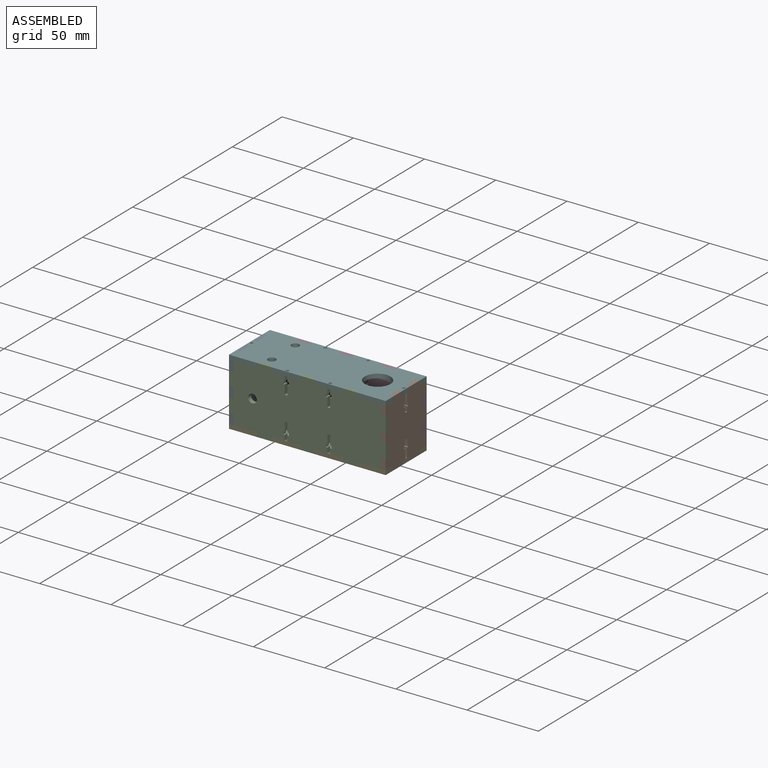
[diagram: assembled view]
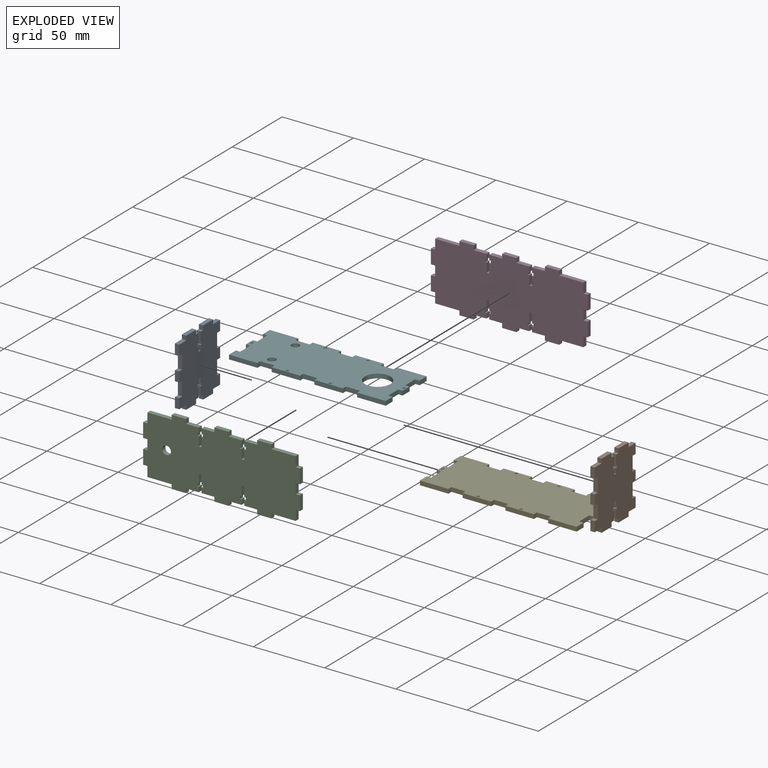
[diagram: exploded view]
GUIDED TOUR — MATED ASSEMBLY (Onshape document 57d23589ab19f81124c45ab2, AutoMate assembly 57d23589ab19f81124c45ab2_410d4a1f6fd2b2ed093dff40_65a6ee1e8bab9fb30bbce9b5_default)

This assembly has 6 components, labeled P0..P5 below (a component is one placed occurrence of a part; the same part can appear more than once), held together by 5 mates. A mate is a constraint between two components; its type names the relative motion it leaves free:
  FASTENED — locks the two components together rigidly (no relative motion).
Axis/direction vectors are unit vectors and 'through' points are millimeter coordinates, both in the assembly's world frame.

MATES
  1. FASTENED "Fastened 3": P1 <-> P4, direction (-1.000, 0.000, 0.000) through (77.69, -6.43, -26.79) mm
  2. FASTENED "Fastened 1": P0 <-> P5, direction (1.000, 0.000, 0.000) through (-26.31, -6.43, 20.21) mm
  3. FASTENED "Fastened 2": P0 <-> P4, direction (1.000, 0.000, 0.000) through (-26.31, 10.57, -26.79) mm
  4. FASTENED "Fastened 4": P3 <-> P4, direction (0.000, -1.000, 0.000) through (-4.31, 19.57, -26.79) mm
  5. FASTENED "Fastened 5": P2 <-> P5, direction (0.000, 1.000, 0.000) through (25.69, -15.43, 20.21) mm

ASSEMBLY ORDER
  1. P5 — the base component [order verified]
  2. P0 [order verified]
  3. P1 [order verified]
  4. P4 [order verified]
  5. P3 [order verified]
  6. P2 [order verified]
Order-tag legend:
  [order verified] — this step's position reverses a verified removal order: the component was checked to insert without passing through the ones already placed.

Of the 6 components, 6 carry the full construction recipe — the FeatureScript program that regenerates the part's solid from scratch; the rest are supplied as boundary geometry only.
Each toured component is shown spotlighted twice — in the assembled view, then in the exploded view, where a leader line traces a displaced component back to its assembled socket (saturated green if recipe-attached, orange if geometry-only; every other component desaturated gray) — followed by its recipe or geometry summary and the mates that hold it.
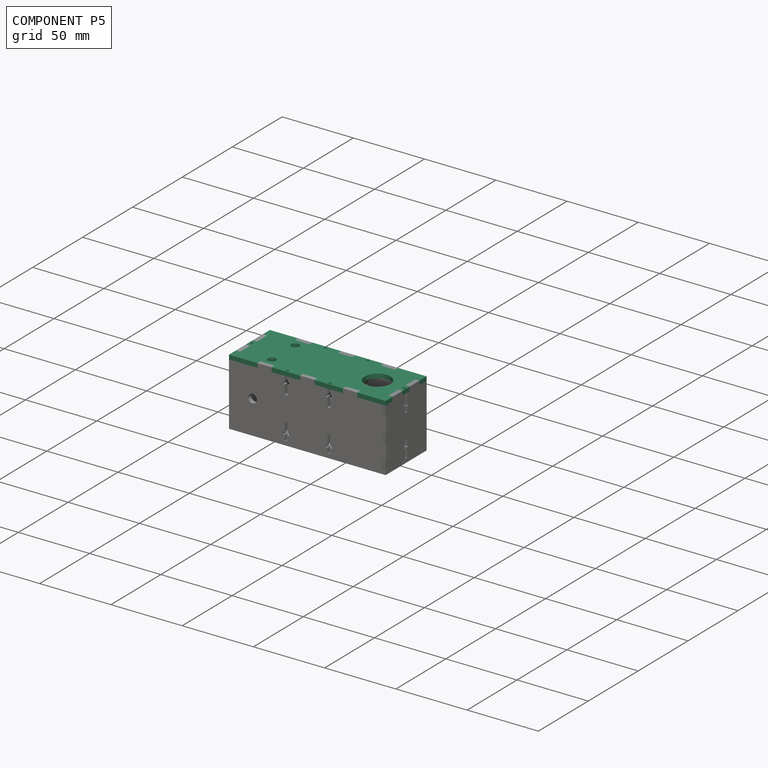
[diagram: component P5 — assembled]
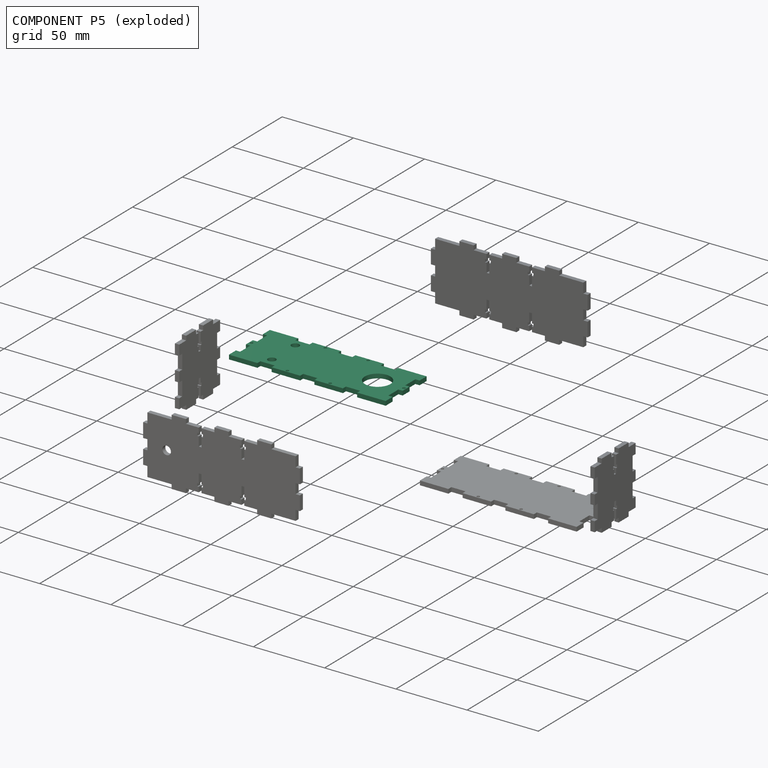
[diagram: component P5 — exploded]
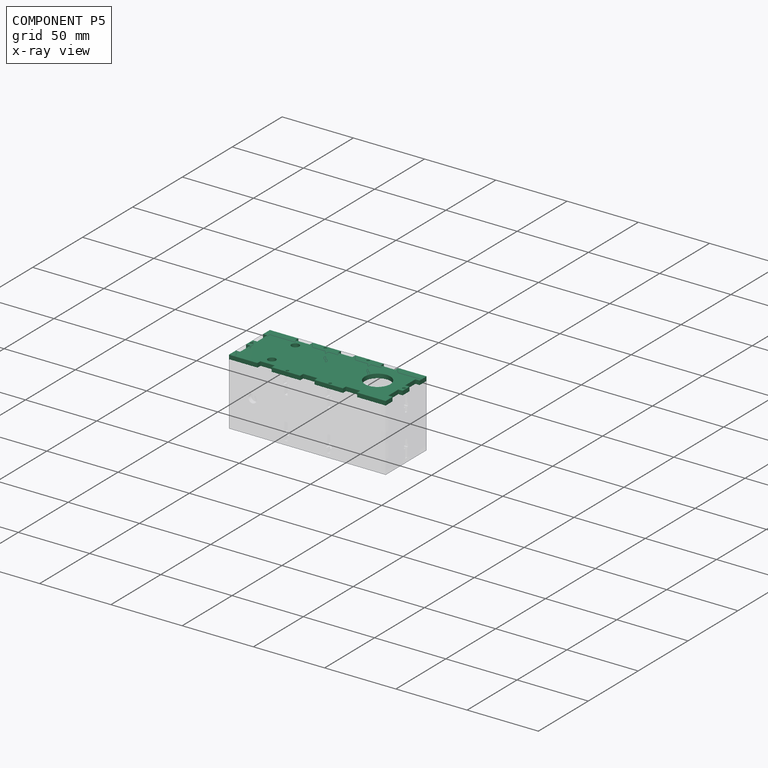
[diagram: component P5 — x-ray view]
COMPONENT P5 — recipe-attached (CADFS 00238667, mesh-verified: the recipe's output STEP matches this component's geometry to below the mesh-comparison resolution (tessellation chordal tolerance ~0.176 mm)).
Held by: FASTENED mate "Fastened 1" to P0; FASTENED mate "Fastened 5" to P2.
Construction recipe (FeatureScript — the CAD program that rebuilds this solid; sketch coordinates are in the units given by the * unit suffixes, e.g. mm):

FeatureScript 1540;
import(path : "onshape/std/geometry.fs", version : "1540.0");
import(path : "onshape/std/common.fs", version : "1540.0");
const mm = millimeter;
const VERTEX = EntityType.VERTEX;
const EDGE = EntityType.EDGE;
const FACE = EntityType.FACE;
const BODY = EntityType.BODY;
function v(x, y){return vector(x, y);}
function OD(order){return orderDisambiguation(order);}
function OSD(set){return originalSetDisambiguation(set);}
function TD(topology){return topologyDisambiguation(topology);}
function TDD(query){return trueDependencyDisambiguation(query);}
function sQuery(a, b, c) {return sketchEntityQuery(a, b, c);}

annotation { "Feature Type Name" : "Feature", "Feature Type Description" : "" }
export const myFeature = defineFeature(function(context is Context, id is Id, definition is map)
    precondition{}
    {
        {
            var Q0;
            Q0=qCreatedBy(makeId("Top.planeOp"),FACE);
            var sketch = newSketch(context, id + "F0", { "sketchPlane" : qUnion([Q0])});
            skLineSegment(sketch, "E0", {"start": v(0, 0) * mm, "end": v(0, 7) * mm});
            skLineSegment(sketch, "E1", {"start": v(0, 7) * mm, "end": v(3, 7) * mm});
            skLineSegment(sketch, "E2", {"start": v(3, 7) * mm, "end": v(3, 17) * mm});
            skLineSegment(sketch, "E3", {"start": v(3, 17) * mm, "end": v(0, 17) * mm});
            skLineSegment(sketch, "E4", {"start": v(0, 17) * mm, "end": v(0, 24) * mm});
            skLineSegment(sketch, "E5", {"start": v(0, 24) * mm, "end": v(3, 24) * mm});
            skLineSegment(sketch, "E6", {"start": v(3, 24) * mm, "end": v(3, 34) * mm});
            skLineSegment(sketch, "E7", {"start": v(3, 34) * mm, "end": v(0, 34) * mm});
            skLineSegment(sketch, "E8", {"start": v(0, 34) * mm, "end": v(0, 41) * mm});
            skLineSegment(sketch, "E9", {"start": v(0, 41) * mm, "end": v(20, 41) * mm});
            skLineSegment(sketch, "E10", {"start": v(20, 41) * mm, "end": v(20, 38) * mm});
            skLineSegment(sketch, "E11", {"start": v(20, 38) * mm, "end": v(30, 38) * mm});
            skLineSegment(sketch, "E12", {"start": v(30, 38) * mm, "end": v(30, 41) * mm});
            skLineSegment(sketch, "E13", {"start": v(30, 41) * mm, "end": v(50, 41) * mm});
            skLineSegment(sketch, "E14", {"start": v(50, 38) * mm, "end": v(55, 38) * mm});
            skLineSegment(sketch, "E15", {"start": v(50, 41) * mm, "end": v(50, 38) * mm});
            skLineSegment(sketch, "E16", {"start": v(55, 40.92) * mm, "end": v(55, 0) * mm, "construction": true});
            skLineSegment(sketch, "E17", {"start": v(0, 20.5) * mm, "end": v(55, 20.5) * mm, "construction": true});
            skCircle(sketch, "E18", {"center": v(40, 39.5) * mm, "radius": 1 * mm});
            skPoint(sketch, "E18.centerSnap0", {"position": v(40, 41) * mm});
            skPoint(sketch, "E18.centerSnap1", {"position": v(50, 39.5) * mm});
            skCircle(sketch, "E19", {"center": v(1.5, 20.5) * mm, "radius": 1 * mm});
            skPoint(sketch, "E19.centerSnap0", {"position": v(1.5, 24) * mm});
            skLineSegment(sketch, "E20.MirrorCS", {"start": v(20, 0) * mm, "end": v(20, 3) * mm});
            skLineSegment(sketch, "E21.MirrorCS", {"start": v(50, 0) * mm, "end": v(50, 3) * mm});
            skLineSegment(sketch, "E22.MirrorCS", {"start": v(30, 3) * mm, "end": v(30, 0) * mm});
            skCircle(sketch, "E23.MirrorC", {"center": v(40, 1.5) * mm, "radius": 1 * mm});
            skLineSegment(sketch, "E24.MirrorCS", {"start": v(20, 3) * mm, "end": v(30, 3) * mm});
            skLineSegment(sketch, "E25.MirrorCS", {"start": v(30, 0) * mm, "end": v(50, 0) * mm});
            skPoint(sketch, "E26.MirrorP", {"position": v(40, 0) * mm});
            skPoint(sketch, "E27.MirrorP", {"position": v(50, 1.5) * mm});
            skLineSegment(sketch, "E28.MirrorCS", {"start": v(0, 0) * mm, "end": v(20, 0) * mm});
            skLineSegment(sketch, "E29.MirrorCS", {"start": v(50, 3) * mm, "end": v(55, 3) * mm});
            skLineSegment(sketch, "E30.MirrorCS", {"start": v(60, 41) * mm, "end": v(60, 38) * mm});
            skLineSegment(sketch, "E31.MirrorCS", {"start": v(107, 34) * mm, "end": v(110, 34) * mm});
            skLineSegment(sketch, "E32.MirrorCS", {"start": v(110, 24) * mm, "end": v(107, 24) * mm});
            skLineSegment(sketch, "E33.MirrorCS", {"start": v(110, 7) * mm, "end": v(107, 7) * mm});
            skLineSegment(sketch, "E34.MirrorCS", {"start": v(107, 17) * mm, "end": v(110, 17) * mm});
            skLineSegment(sketch, "E35.MirrorCS", {"start": v(90, 41) * mm, "end": v(90, 38) * mm});
            skLineSegment(sketch, "E36.MirrorCS", {"start": v(80, 38) * mm, "end": v(80, 41) * mm});
            skLineSegment(sketch, "E37.MirrorCS", {"start": v(60, 0) * mm, "end": v(60, 3) * mm});
            skCircle(sketch, "E38.MirrorC", {"center": v(108.5, 20.5) * mm, "radius": 1 * mm});
            skCircle(sketch, "E39.MirrorC", {"center": v(70, 1.5) * mm, "radius": 1 * mm});
            skCircle(sketch, "E40.MirrorC", {"center": v(70, 39.5) * mm, "radius": 1 * mm});
            skLineSegment(sketch, "E41.MirrorCS", {"start": v(110, 17) * mm, "end": v(110, 24) * mm});
            skLineSegment(sketch, "E42.MirrorCS", {"start": v(80, 41) * mm, "end": v(60, 41) * mm});
            skPoint(sketch, "E43.MirrorP", {"position": v(108.5, 24) * mm});
            skLineSegment(sketch, "E44.MirrorCS", {"start": v(90, 3) * mm, "end": v(80, 3) * mm});
            skLineSegment(sketch, "E45.MirrorCS", {"start": v(110, 0) * mm, "end": v(90, 0) * mm});
            skPoint(sketch, "E46.MirrorP", {"position": v(70, 41) * mm});
            skLineSegment(sketch, "E47.MirrorCS", {"start": v(107, 24) * mm, "end": v(107, 34) * mm});
            skPoint(sketch, "E48.MirrorP", {"position": v(60, 39.5) * mm});
            skLineSegment(sketch, "E49.MirrorCS", {"start": v(110, 0) * mm, "end": v(110, 7) * mm});
            skPoint(sketch, "E50.MirrorP", {"position": v(70, 0) * mm});
            skLineSegment(sketch, "E51.MirrorCS", {"start": v(110, 34) * mm, "end": v(110, 41) * mm});
            skLineSegment(sketch, "E52.MirrorCS", {"start": v(107, 7) * mm, "end": v(107, 17) * mm});
            skLineSegment(sketch, "E53.MirrorCS", {"start": v(110, 41) * mm, "end": v(90, 41) * mm});
            skLineSegment(sketch, "E54.MirrorCS", {"start": v(90, 38) * mm, "end": v(80, 38) * mm});
            skLineSegment(sketch, "E55.MirrorCS", {"start": v(80, 0) * mm, "end": v(60, 0) * mm});
            skLineSegment(sketch, "E56.MirrorCS", {"start": v(80, 3) * mm, "end": v(80, 0) * mm});
            skLineSegment(sketch, "E57.MirrorCS", {"start": v(90, 0) * mm, "end": v(90, 3) * mm});
            skPoint(sketch, "E58.MirrorP", {"position": v(60, 1.5) * mm});
            skLineSegment(sketch, "E59.MirrorCS", {"start": v(60, 3) * mm, "end": v(55, 3) * mm});
            skLineSegment(sketch, "E60.MirrorCS", {"start": v(60, 38) * mm, "end": v(55, 38) * mm});
            skCircle(sketch, "E61", {"center": v(90, 20.5) * mm, "radius": 9 * mm});
            skPoint(sketch, "E61.centerSnap0", {"position": v(110, 20.5) * mm});
            skPoint(sketch, "E62.centerSnap0", {"position": v(3, 29) * mm});
            skPoint(sketch, "E62.centerSnap1", {"position": v(25, 38) * mm});
            skPoint(sketch, "E63.centerSnap0", {"position": v(3, 12) * mm});
            skPoint(sketch, "E63.centerSnap1", {"position": v(25, 3) * mm});
            skCircle(sketch, "E64", {"center": v(24, 8.75) * mm, "radius": 2.75 * mm});
            skCircle(sketch, "E65.MirrorC", {"center": v(24, 32.25) * mm, "radius": 2.75 * mm});
            skSolve(sketch);
        }
        {
            var Q0;
            Q0=qSketchRegion(id+"F0",true);
            extrude(context, id + "F1", {"entities" : qUnion([Q0]), "depth" : 3 * mm});
        }
    });
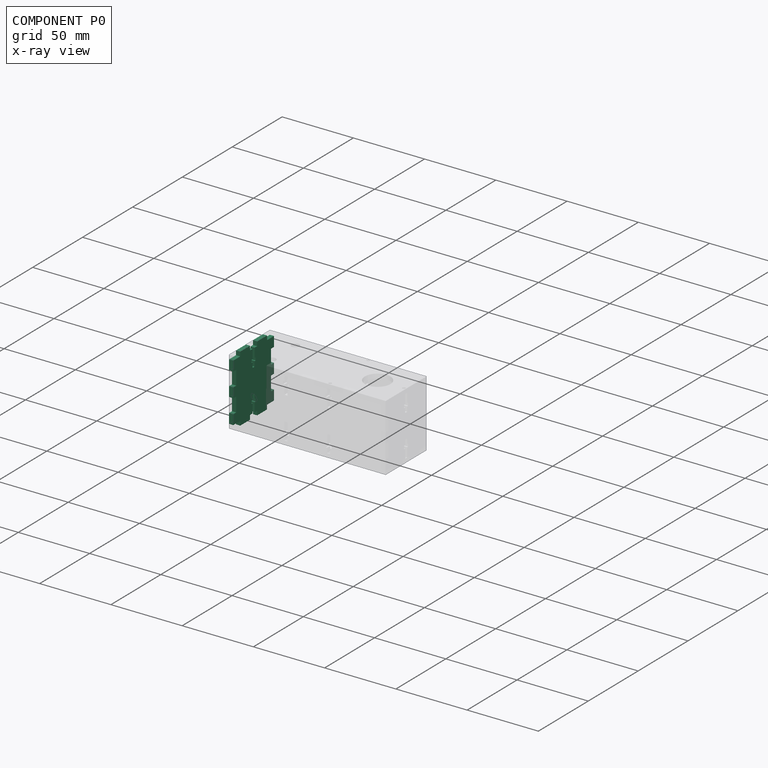
[diagram: component P0 — x-ray view]
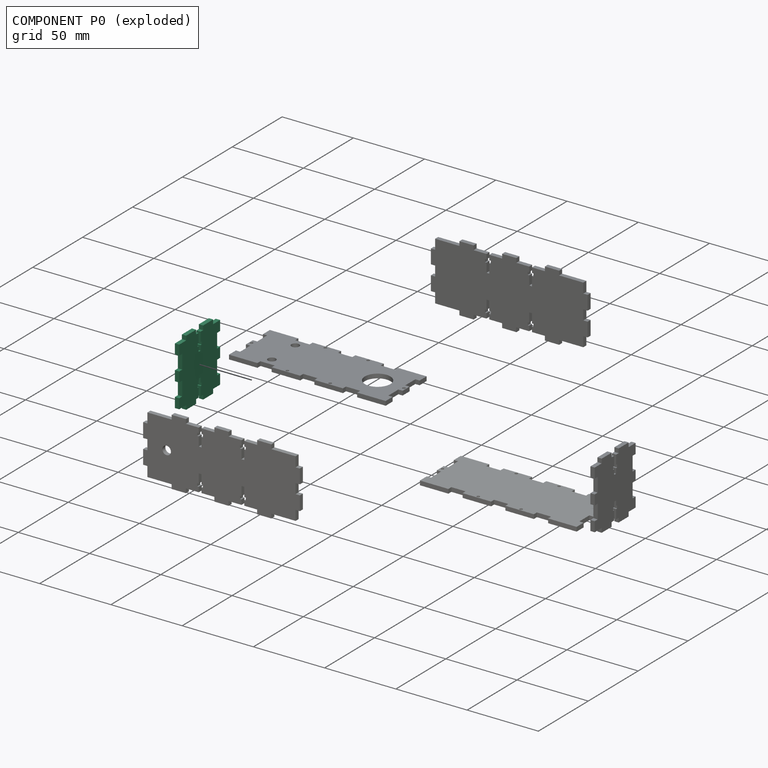
[diagram: component P0 — exploded]
COMPONENT P0 — recipe-attached (CADFS 00238668, mesh-verified: the recipe's output STEP matches this component's geometry to below the mesh-comparison resolution (tessellation chordal tolerance ~0.0937 mm)).
Held by: FASTENED mate "Fastened 1" to P5; FASTENED mate "Fastened 2" to P4.
Construction recipe (FeatureScript — the CAD program that rebuilds this solid; sketch coordinates are in the units given by the * unit suffixes, e.g. mm):

FeatureScript 1540;
import(path : "onshape/std/geometry.fs", version : "1540.0");
import(path : "onshape/std/common.fs", version : "1540.0");
const mm = millimeter;
const VERTEX = EntityType.VERTEX;
const EDGE = EntityType.EDGE;
const FACE = EntityType.FACE;
const BODY = EntityType.BODY;
function v(x, y){return vector(x, y);}
function OD(order){return orderDisambiguation(order);}
function OSD(set){return originalSetDisambiguation(set);}
function TD(topology){return topologyDisambiguation(topology);}
function TDD(query){return trueDependencyDisambiguation(query);}
function sQuery(a, b, c) {return sketchEntityQuery(a, b, c);}

annotation { "Feature Type Name" : "Feature", "Feature Type Description" : "" }
export const myFeature = defineFeature(function(context is Context, id is Id, definition is map)
    precondition{}
    {
        {
            var Q0;
            Q0=qCreatedBy(makeId("Right.planeOp"),FACE);
            var sketch = newSketch(context, id + "F0", { "sketchPlane" : qUnion([Q0])});
            skLineSegment(sketch, "E0", {"start": v(24, 0) * mm, "end": v(24, 3) * mm});
            skLineSegment(sketch, "E1", {"start": v(24, 3) * mm, "end": v(34, 3) * mm});
            skLineSegment(sketch, "E2", {"start": v(41, 7) * mm, "end": v(44, 7) * mm});
            skLineSegment(sketch, "E3", {"start": v(44, 7) * mm, "end": v(44, 17) * mm});
            skLineSegment(sketch, "E4", {"start": v(44, 17) * mm, "end": v(41, 17) * mm});
            skLineSegment(sketch, "E5", {"start": v(41, 17) * mm, "end": v(41, 19.5) * mm});
            skLineSegment(sketch, "E6", {"start": v(41, 19.5) * mm, "end": v(34.5, 19.5) * mm});
            skLineSegment(sketch, "E7", {"start": v(34.5, 19.5) * mm, "end": v(34.5, 18.5) * mm});
            skLineSegment(sketch, "E8", {"start": v(34.5, 18.5) * mm, "end": v(32.5, 18.5) * mm});
            skLineSegment(sketch, "E9", {"start": v(32.5, 18.5) * mm, "end": v(32.5, 19.5) * mm});
            skLineSegment(sketch, "E10", {"start": v(32.5, 19.5) * mm, "end": v(29, 19.5) * mm});
            skLineSegment(sketch, "E11", {"start": v(29, 19.5) * mm, "end": v(29, 20.5) * mm});
            skLineSegment(sketch, "E12", {"start": v(44.49, 20.5) * mm, "end": v(0, 20.5) * mm, "construction": true});
            skLineSegment(sketch, "E13", {"start": v(20.5, 0) * mm, "end": v(24, 0) * mm});
            skLineSegment(sketch, "E14", {"start": v(20.5, 41) * mm, "end": v(20.5, 0) * mm, "construction": true});
            skLineSegment(sketch, "E15", {"start": v(34, 3) * mm, "end": v(34, 0) * mm});
            skLineSegment(sketch, "E16", {"start": v(34, 0) * mm, "end": v(41, 0) * mm});
            skLineSegment(sketch, "E17", {"start": v(41, 0) * mm, "end": v(41, 7) * mm});
            skLineSegment(sketch, "E18.MirrorCS", {"start": v(34.5, 22.5) * mm, "end": v(32.5, 22.5) * mm});
            skLineSegment(sketch, "E19.MirrorCS", {"start": v(41, 34) * mm, "end": v(44, 34) * mm});
            skLineSegment(sketch, "E20.MirrorCS", {"start": v(29, 21.5) * mm, "end": v(29, 20.5) * mm});
            skLineSegment(sketch, "E21.MirrorCS", {"start": v(41, 24) * mm, "end": v(41, 21.5) * mm});
            skLineSegment(sketch, "E22.MirrorCS", {"start": v(32.5, 22.5) * mm, "end": v(32.5, 21.5) * mm});
            skLineSegment(sketch, "E23.MirrorCS", {"start": v(44, 24) * mm, "end": v(41, 24) * mm});
            skLineSegment(sketch, "E24.MirrorCS", {"start": v(34.5, 21.5) * mm, "end": v(34.5, 22.5) * mm});
            skLineSegment(sketch, "E25.MirrorCS", {"start": v(34, 41) * mm, "end": v(41, 41) * mm});
            skLineSegment(sketch, "E26.MirrorCS", {"start": v(41, 21.5) * mm, "end": v(34.5, 21.5) * mm});
            skLineSegment(sketch, "E27.MirrorCS", {"start": v(41, 41) * mm, "end": v(41, 34) * mm});
            skLineSegment(sketch, "E28.MirrorCS", {"start": v(32.5, 21.5) * mm, "end": v(29, 21.5) * mm});
            skLineSegment(sketch, "E29.MirrorCS", {"start": v(24, 41) * mm, "end": v(24, 38) * mm});
            skLineSegment(sketch, "E30.MirrorCS", {"start": v(24, 38) * mm, "end": v(34, 38) * mm});
            skLineSegment(sketch, "E31.MirrorCS", {"start": v(44, 34) * mm, "end": v(44, 24) * mm});
            skLineSegment(sketch, "E32.MirrorCS", {"start": v(20.5, 41) * mm, "end": v(24, 41) * mm});
            skLineSegment(sketch, "E33.MirrorCS", {"start": v(34, 38) * mm, "end": v(34, 41) * mm});
            skLineSegment(sketch, "E34.MirrorCS", {"start": v(12, 21.5) * mm, "end": v(12, 20.5) * mm});
            skLineSegment(sketch, "E35.MirrorCS", {"start": v(6.5, 19.5) * mm, "end": v(6.5, 18.5) * mm});
            skLineSegment(sketch, "E36.MirrorCS", {"start": v(12, 19.5) * mm, "end": v(12, 20.5) * mm});
            skLineSegment(sketch, "E37.MirrorCS", {"start": v(6.5, 22.5) * mm, "end": v(8.5, 22.5) * mm});
            skLineSegment(sketch, "E38.MirrorCS", {"start": v(6.5, 21.5) * mm, "end": v(6.5, 22.5) * mm});
            skLineSegment(sketch, "E39.MirrorCS", {"start": v(8.5, 21.5) * mm, "end": v(12, 21.5) * mm});
            skLineSegment(sketch, "E40.MirrorCS", {"start": v(8.5, 18.5) * mm, "end": v(8.5, 19.5) * mm});
            skLineSegment(sketch, "E41.MirrorCS", {"start": v(6.5, 18.5) * mm, "end": v(8.5, 18.5) * mm});
            skLineSegment(sketch, "E42.MirrorCS", {"start": v(8.5, 19.5) * mm, "end": v(12, 19.5) * mm});
            skLineSegment(sketch, "E43.MirrorCS", {"start": v(20.5, 0) * mm, "end": v(17, 0) * mm});
            skLineSegment(sketch, "E44.MirrorCS", {"start": v(7, 3) * mm, "end": v(7, 0) * mm});
            skLineSegment(sketch, "E45.MirrorCS", {"start": v(0, 7) * mm, "end": v(-3, 7) * mm});
            skLineSegment(sketch, "E46.MirrorCS", {"start": v(0, 17) * mm, "end": v(0, 19.5) * mm});
            skLineSegment(sketch, "E47.MirrorCS", {"start": v(7, 38) * mm, "end": v(7, 41) * mm});
            skLineSegment(sketch, "E48.MirrorCS", {"start": v(8.5, 22.5) * mm, "end": v(8.5, 21.5) * mm});
            skLineSegment(sketch, "E49.MirrorCS", {"start": v(0, 34) * mm, "end": v(-3, 34) * mm});
            skLineSegment(sketch, "E50.MirrorCS", {"start": v(17, 0) * mm, "end": v(17, 3) * mm});
            skLineSegment(sketch, "E51.MirrorCS", {"start": v(20.5, 41) * mm, "end": v(17, 41) * mm});
            skLineSegment(sketch, "E52.MirrorCS", {"start": v(17, 41) * mm, "end": v(17, 38) * mm});
            skLineSegment(sketch, "E53.MirrorCS", {"start": v(0, 24) * mm, "end": v(0, 21.5) * mm});
            skLineSegment(sketch, "E54.MirrorCS", {"start": v(-3, 24) * mm, "end": v(0, 24) * mm});
            skLineSegment(sketch, "E55.MirrorCS", {"start": v(-3, 17) * mm, "end": v(0, 17) * mm});
            skLineSegment(sketch, "E56.MirrorCS", {"start": v(-3, 34) * mm, "end": v(-3, 24) * mm});
            skLineSegment(sketch, "E57.MirrorCS", {"start": v(17, 38) * mm, "end": v(7, 38) * mm});
            skLineSegment(sketch, "E58.MirrorCS", {"start": v(7, 41) * mm, "end": v(0, 41) * mm});
            skLineSegment(sketch, "E59.MirrorCS", {"start": v(0, 19.5) * mm, "end": v(6.5, 19.5) * mm});
            skLineSegment(sketch, "E60.MirrorCS", {"start": v(0, 21.5) * mm, "end": v(6.5, 21.5) * mm});
            skLineSegment(sketch, "E61.MirrorCS", {"start": v(17, 3) * mm, "end": v(7, 3) * mm});
            skLineSegment(sketch, "E62.MirrorCS", {"start": v(0, 0) * mm, "end": v(0, 7) * mm});
            skLineSegment(sketch, "E63.MirrorCS", {"start": v(7, 0) * mm, "end": v(0, 0) * mm});
            skLineSegment(sketch, "E64.MirrorCS", {"start": v(0, 41) * mm, "end": v(0, 34) * mm});
            skLineSegment(sketch, "E65.MirrorCS", {"start": v(-3, 7) * mm, "end": v(-3, 17) * mm});
            skSolve(sketch);
        }
        {
            var Q0;
            Q0=qSketchRegion(id+"F0",true);
            extrude(context, id + "F1", {"entities" : qUnion([Q0]), "depth" : 3 * mm});
        }
    });
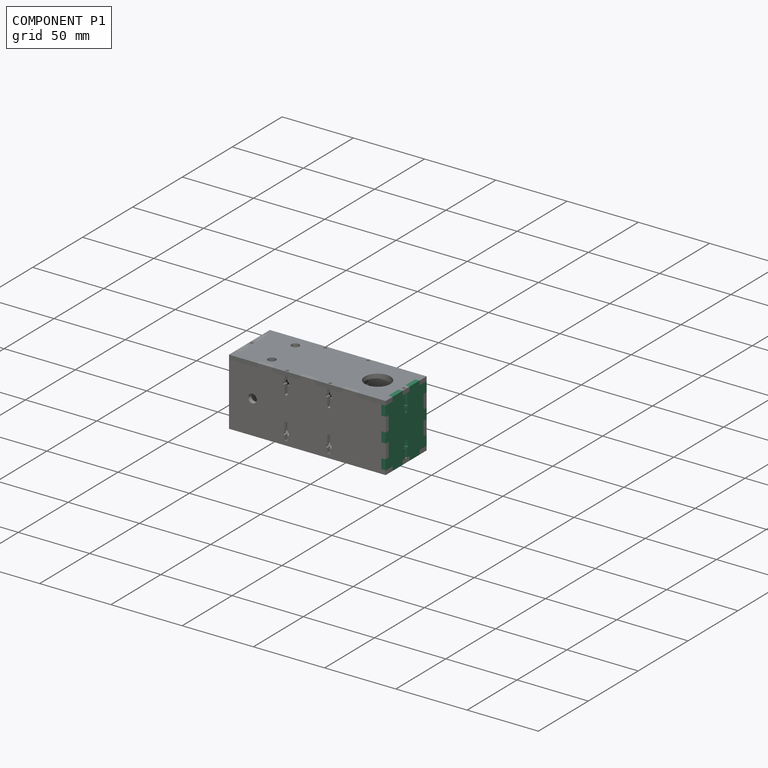
[diagram: component P1 — assembled]
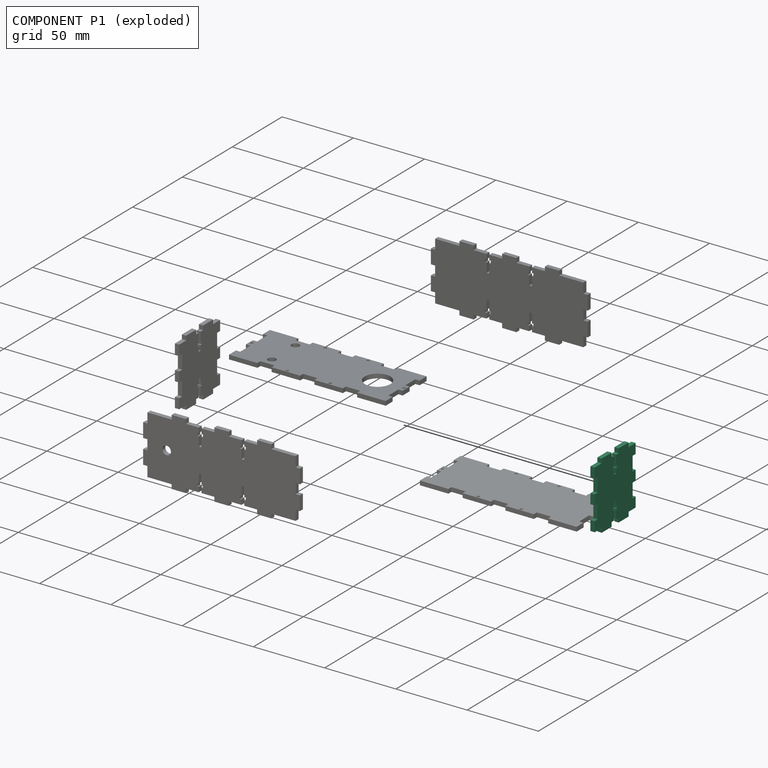
[diagram: component P1 — exploded]
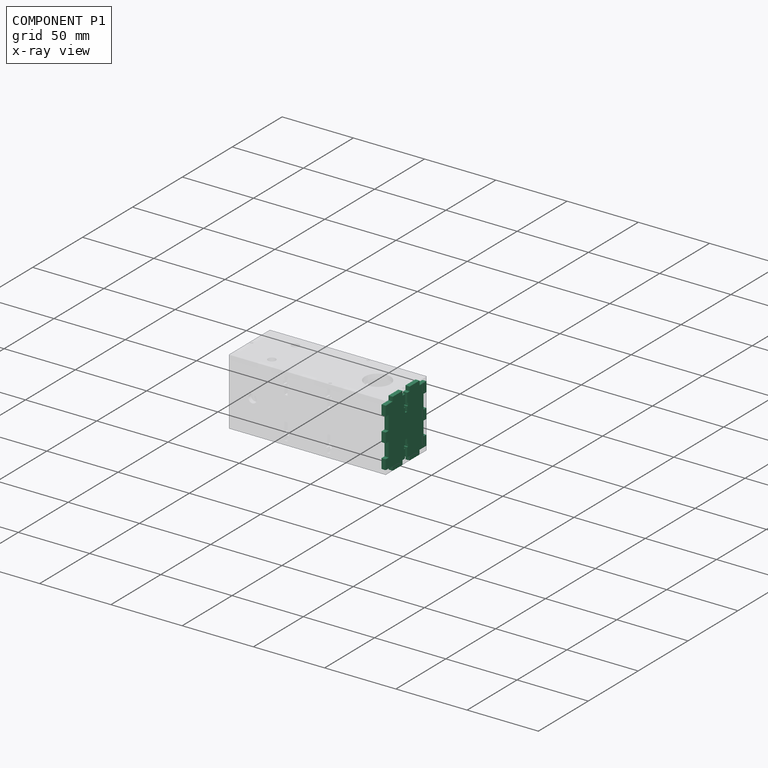
[diagram: component P1 — x-ray view]
COMPONENT P1 — recipe-attached (CADFS 00238668, mesh-verified: the recipe's output STEP matches this component's geometry to below the mesh-comparison resolution (tessellation chordal tolerance ~0.0937 mm)).
Held by: FASTENED mate "Fastened 3" to P4.
Construction recipe (FeatureScript — the CAD program that rebuilds this solid; sketch coordinates are in the units given by the * unit suffixes, e.g. mm):

FeatureScript 1540;
import(path : "onshape/std/geometry.fs", version : "1540.0");
import(path : "onshape/std/common.fs", version : "1540.0");
const mm = millimeter;
const VERTEX = EntityType.VERTEX;
const EDGE = EntityType.EDGE;
const FACE = EntityType.FACE;
const BODY = EntityType.BODY;
function v(x, y){return vector(x, y);}
function OD(order){return orderDisambiguation(order);}
function OSD(set){return originalSetDisambiguation(set);}
function TD(topology){return topologyDisambiguation(topology);}
function TDD(query){return trueDependencyDisambiguation(query);}
function sQuery(a, b, c) {return sketchEntityQuery(a, b, c);}

annotation { "Feature Type Name" : "Feature", "Feature Type Description" : "" }
export const myFeature = defineFeature(function(context is Context, id is Id, definition is map)
    precondition{}
    {
        {
            var Q0;
            Q0=qCreatedBy(makeId("Right.planeOp"),FACE);
            var sketch = newSketch(context, id + "F0", { "sketchPlane" : qUnion([Q0])});
            skLineSegment(sketch, "E0", {"start": v(24, 0) * mm, "end": v(24, 3) * mm});
            skLineSegment(sketch, "E1", {"start": v(24, 3) * mm, "end": v(34, 3) * mm});
            skLineSegment(sketch, "E2", {"start": v(41, 7) * mm, "end": v(44, 7) * mm});
            skLineSegment(sketch, "E3", {"start": v(44, 7) * mm, "end": v(44, 17) * mm});
            skLineSegment(sketch, "E4", {"start": v(44, 17) * mm, "end": v(41, 17) * mm});
            skLineSegment(sketch, "E5", {"start": v(41, 17) * mm, "end": v(41, 19.5) * mm});
            skLineSegment(sketch, "E6", {"start": v(41, 19.5) * mm, "end": v(34.5, 19.5) * mm});
            skLineSegment(sketch, "E7", {"start": v(34.5, 19.5) * mm, "end": v(34.5, 18.5) * mm});
            skLineSegment(sketch, "E8", {"start": v(34.5, 18.5) * mm, "end": v(32.5, 18.5) * mm});
            skLineSegment(sketch, "E9", {"start": v(32.5, 18.5) * mm, "end": v(32.5, 19.5) * mm});
            skLineSegment(sketch, "E10", {"start": v(32.5, 19.5) * mm, "end": v(29, 19.5) * mm});
            skLineSegment(sketch, "E11", {"start": v(29, 19.5) * mm, "end": v(29, 20.5) * mm});
            skLineSegment(sketch, "E12", {"start": v(44.49, 20.5) * mm, "end": v(0, 20.5) * mm, "construction": true});
            skLineSegment(sketch, "E13", {"start": v(20.5, 0) * mm, "end": v(24, 0) * mm});
            skLineSegment(sketch, "E14", {"start": v(20.5, 41) * mm, "end": v(20.5, 0) * mm, "construction": true});
            skLineSegment(sketch, "E15", {"start": v(34, 3) * mm, "end": v(34, 0) * mm});
            skLineSegment(sketch, "E16", {"start": v(34, 0) * mm, "end": v(41, 0) * mm});
            skLineSegment(sketch, "E17", {"start": v(41, 0) * mm, "end": v(41, 7) * mm});
            skLineSegment(sketch, "E18.MirrorCS", {"start": v(34.5, 22.5) * mm, "end": v(32.5, 22.5) * mm});
            skLineSegment(sketch, "E19.MirrorCS", {"start": v(41, 34) * mm, "end": v(44, 34) * mm});
            skLineSegment(sketch, "E20.MirrorCS", {"start": v(29, 21.5) * mm, "end": v(29, 20.5) * mm});
            skLineSegment(sketch, "E21.MirrorCS", {"start": v(41, 24) * mm, "end": v(41, 21.5) * mm});
            skLineSegment(sketch, "E22.MirrorCS", {"start": v(32.5, 22.5) * mm, "end": v(32.5, 21.5) * mm});
            skLineSegment(sketch, "E23.MirrorCS", {"start": v(44, 24) * mm, "end": v(41, 24) * mm});
            skLineSegment(sketch, "E24.MirrorCS", {"start": v(34.5, 21.5) * mm, "end": v(34.5, 22.5) * mm});
            skLineSegment(sketch, "E25.MirrorCS", {"start": v(34, 41) * mm, "end": v(41, 41) * mm});
            skLineSegment(sketch, "E26.MirrorCS", {"start": v(41, 21.5) * mm, "end": v(34.5, 21.5) * mm});
            skLineSegment(sketch, "E27.MirrorCS", {"start": v(41, 41) * mm, "end": v(41, 34) * mm});
            skLineSegment(sketch, "E28.MirrorCS", {"start": v(32.5, 21.5) * mm, "end": v(29, 21.5) * mm});
            skLineSegment(sketch, "E29.MirrorCS", {"start": v(24, 41) * mm, "end": v(24, 38) * mm});
            skLineSegment(sketch, "E30.MirrorCS", {"start": v(24, 38) * mm, "end": v(34, 38) * mm});
            skLineSegment(sketch, "E31.MirrorCS", {"start": v(44, 34) * mm, "end": v(44, 24) * mm});
            skLineSegment(sketch, "E32.MirrorCS", {"start": v(20.5, 41) * mm, "end": v(24, 41) * mm});
            skLineSegment(sketch, "E33.MirrorCS", {"start": v(34, 38) * mm, "end": v(34, 41) * mm});
            skLineSegment(sketch, "E34.MirrorCS", {"start": v(12, 21.5) * mm, "end": v(12, 20.5) * mm});
            skLineSegment(sketch, "E35.MirrorCS", {"start": v(6.5, 19.5) * mm, "end": v(6.5, 18.5) * mm});
            skLineSegment(sketch, "E36.MirrorCS", {"start": v(12, 19.5) * mm, "end": v(12, 20.5) * mm});
            skLineSegment(sketch, "E37.MirrorCS", {"start": v(6.5, 22.5) * mm, "end": v(8.5, 22.5) * mm});
            skLineSegment(sketch, "E38.MirrorCS", {"start": v(6.5, 21.5) * mm, "end": v(6.5, 22.5) * mm});
            skLineSegment(sketch, "E39.MirrorCS", {"start": v(8.5, 21.5) * mm, "end": v(12, 21.5) * mm});
            skLineSegment(sketch, "E40.MirrorCS", {"start": v(8.5, 18.5) * mm, "end": v(8.5, 19.5) * mm});
            skLineSegment(sketch, "E41.MirrorCS", {"start": v(6.5, 18.5) * mm, "end": v(8.5, 18.5) * mm});
            skLineSegment(sketch, "E42.MirrorCS", {"start": v(8.5, 19.5) * mm, "end": v(12, 19.5) * mm});
            skLineSegment(sketch, "E43.MirrorCS", {"start": v(20.5, 0) * mm, "end": v(17, 0) * mm});
            skLineSegment(sketch, "E44.MirrorCS", {"start": v(7, 3) * mm, "end": v(7, 0) * mm});
            skLineSegment(sketch, "E45.MirrorCS", {"start": v(0, 7) * mm, "end": v(-3, 7) * mm});
            skLineSegment(sketch, "E46.MirrorCS", {"start": v(0, 17) * mm, "end": v(0, 19.5) * mm});
            skLineSegment(sketch, "E47.MirrorCS", {"start": v(7, 38) * mm, "end": v(7, 41) * mm});
            skLineSegment(sketch, "E48.MirrorCS", {"start": v(8.5, 22.5) * mm, "end": v(8.5, 21.5) * mm});
            skLineSegment(sketch, "E49.MirrorCS", {"start": v(0, 34) * mm, "end": v(-3, 34) * mm});
            skLineSegment(sketch, "E50.MirrorCS", {"start": v(17, 0) * mm, "end": v(17, 3) * mm});
            skLineSegment(sketch, "E51.MirrorCS", {"start": v(20.5, 41) * mm, "end": v(17, 41) * mm});
            skLineSegment(sketch, "E52.MirrorCS", {"start": v(17, 41) * mm, "end": v(17, 38) * mm});
            skLineSegment(sketch, "E53.MirrorCS", {"start": v(0, 24) * mm, "end": v(0, 21.5) * mm});
            skLineSegment(sketch, "E54.MirrorCS", {"start": v(-3, 24) * mm, "end": v(0, 24) * mm});
            skLineSegment(sketch, "E55.MirrorCS", {"start": v(-3, 17) * mm, "end": v(0, 17) * mm});
            skLineSegment(sketch, "E56.MirrorCS", {"start": v(-3, 34) * mm, "end": v(-3, 24) * mm});
            skLineSegment(sketch, "E57.MirrorCS", {"start": v(17, 38) * mm, "end": v(7, 38) * mm});
            skLineSegment(sketch, "E58.MirrorCS", {"start": v(7, 41) * mm, "end": v(0, 41) * mm});
            skLineSegment(sketch, "E59.MirrorCS", {"start": v(0, 19.5) * mm, "end": v(6.5, 19.5) * mm});
            skLineSegment(sketch, "E60.MirrorCS", {"start": v(0, 21.5) * mm, "end": v(6.5, 21.5) * mm});
            skLineSegment(sketch, "E61.MirrorCS", {"start": v(17, 3) * mm, "end": v(7, 3) * mm});
            skLineSegment(sketch, "E62.MirrorCS", {"start": v(0, 0) * mm, "end": v(0, 7) * mm});
            skLineSegment(sketch, "E63.MirrorCS", {"start": v(7, 0) * mm, "end": v(0, 0) * mm});
            skLineSegment(sketch, "E64.MirrorCS", {"start": v(0, 41) * mm, "end": v(0, 34) * mm});
            skLineSegment(sketch, "E65.MirrorCS", {"start": v(-3, 7) * mm, "end": v(-3, 17) * mm});
            skSolve(sketch);
        }
        {
            var Q0;
            Q0=qSketchRegion(id+"F0",true);
            extrude(context, id + "F1", {"entities" : qUnion([Q0]), "depth" : 3 * mm});
        }
    });
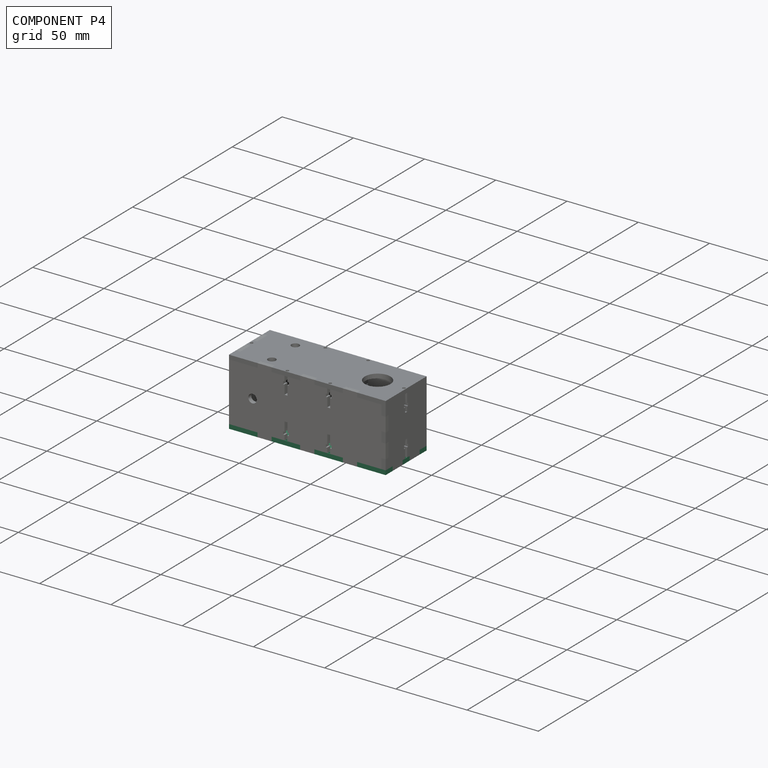
[diagram: component P4 — assembled]
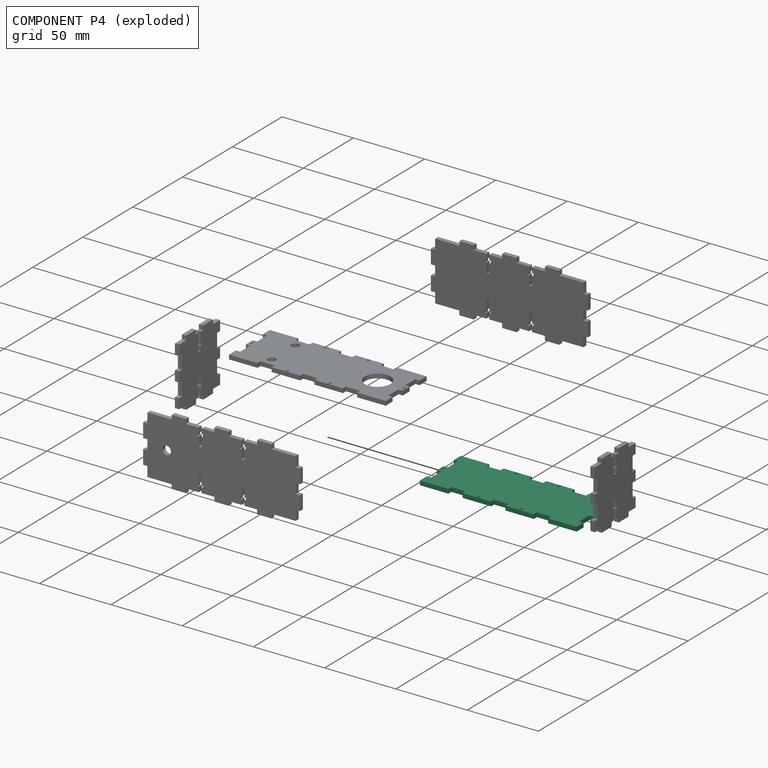
[diagram: component P4 — exploded]
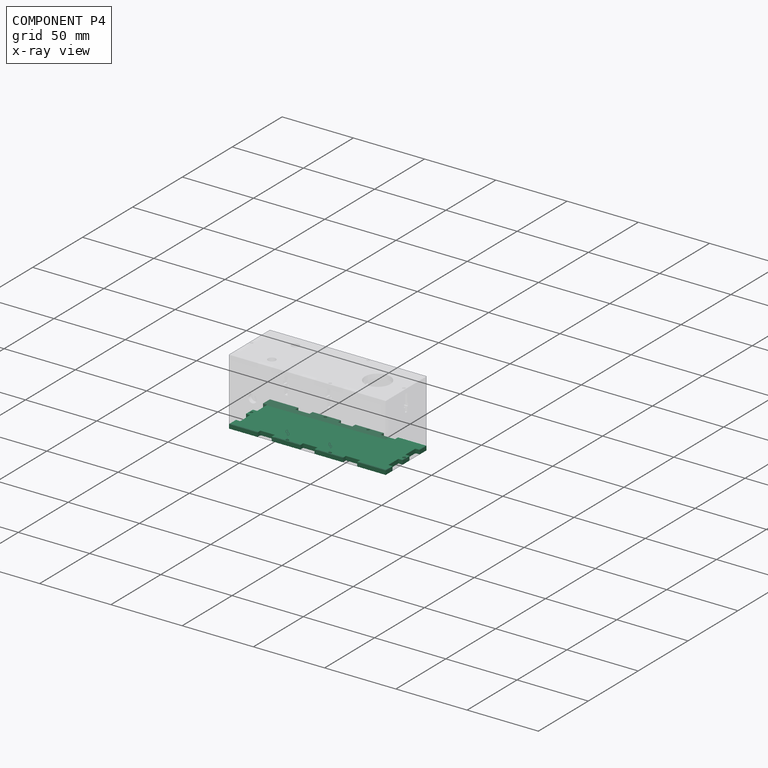
[diagram: component P4 — x-ray view]
COMPONENT P4 — recipe-attached (CADFS 00238672, mesh-verified: the recipe's output STEP matches this component's geometry to below the mesh-comparison resolution (tessellation chordal tolerance ~0.176 mm)).
Held by: FASTENED mate "Fastened 3" to P1; FASTENED mate "Fastened 2" to P0; FASTENED mate "Fastened 4" to P3.
Construction recipe (FeatureScript — the CAD program that rebuilds this solid; sketch coordinates are in the units given by the * unit suffixes, e.g. mm):

FeatureScript 1540;
import(path : "onshape/std/geometry.fs", version : "1540.0");
import(path : "onshape/std/common.fs", version : "1540.0");
const mm = millimeter;
const VERTEX = EntityType.VERTEX;
const EDGE = EntityType.EDGE;
const FACE = EntityType.FACE;
const BODY = EntityType.BODY;
function v(x, y){return vector(x, y);}
function OD(order){return orderDisambiguation(order);}
function OSD(set){return originalSetDisambiguation(set);}
function TD(topology){return topologyDisambiguation(topology);}
function TDD(query){return trueDependencyDisambiguation(query);}
function sQuery(a, b, c) {return sketchEntityQuery(a, b, c);}

annotation { "Feature Type Name" : "Feature", "Feature Type Description" : "" }
export const myFeature = defineFeature(function(context is Context, id is Id, definition is map)
    precondition{}
    {
        {
            var Q0;
            Q0=qCreatedBy(makeId("Right.planeOp"),FACE);
            var sketch = newSketch(context, id + "F0", { "sketchPlane" : qUnion([Q0])});
            skLineSegment(sketch, "E0", {"start": v(-98.44, -9.7) * mm, "end": v(-98.44, -2.7) * mm});
            skLineSegment(sketch, "E1", {"start": v(-98.44, -2.7) * mm, "end": v(-95.44, -2.7) * mm});
            skLineSegment(sketch, "E2", {"start": v(-95.44, -2.7) * mm, "end": v(-95.44, 7.3) * mm});
            skLineSegment(sketch, "E3", {"start": v(-95.44, 7.3) * mm, "end": v(-98.44, 7.3) * mm});
            skLineSegment(sketch, "E4", {"start": v(-98.44, 7.3) * mm, "end": v(-98.44, 14.3) * mm});
            skLineSegment(sketch, "E5", {"start": v(-98.44, 14.3) * mm, "end": v(-95.44, 14.3) * mm});
            skLineSegment(sketch, "E6", {"start": v(-95.44, 14.3) * mm, "end": v(-95.44, 24.3) * mm});
            skLineSegment(sketch, "E7", {"start": v(-95.44, 24.3) * mm, "end": v(-98.44, 24.3) * mm});
            skLineSegment(sketch, "E8", {"start": v(-98.44, 24.3) * mm, "end": v(-98.44, 31.3) * mm});
            skLineSegment(sketch, "E9", {"start": v(-98.44, 31.3) * mm, "end": v(-78.44, 31.3) * mm});
            skLineSegment(sketch, "E10", {"start": v(-78.44, 31.3) * mm, "end": v(-78.44, 28.3) * mm});
            skLineSegment(sketch, "E11", {"start": v(-78.44, 28.3) * mm, "end": v(-68.44, 28.3) * mm});
            skLineSegment(sketch, "E12", {"start": v(-68.44, 28.3) * mm, "end": v(-68.44, 31.3) * mm});
            skLineSegment(sketch, "E13", {"start": v(-68.44, 31.3) * mm, "end": v(-48.44, 31.3) * mm});
            skLineSegment(sketch, "E14", {"start": v(-48.44, 28.3) * mm, "end": v(-43.44, 28.3) * mm});
            skLineSegment(sketch, "E15", {"start": v(-48.44, 31.3) * mm, "end": v(-48.44, 28.3) * mm});
            skLineSegment(sketch, "E16", {"start": v(-43.44, 31.23) * mm, "end": v(-43.44, -9.7) * mm, "construction": true});
            skLineSegment(sketch, "E17", {"start": v(-98.44, 10.8) * mm, "end": v(-43.44, 10.8) * mm, "construction": true});
            skCircle(sketch, "E18", {"center": v(-58.44, 29.8) * mm, "radius": 1 * mm});
            skPoint(sketch, "E18.centerSnap0", {"position": v(-58.44, 31.3) * mm});
            skPoint(sketch, "E18.centerSnap1", {"position": v(-48.44, 29.8) * mm});
            skCircle(sketch, "E19", {"center": v(-96.94, 10.8) * mm, "radius": 1 * mm});
            skPoint(sketch, "E19.centerSnap0", {"position": v(-96.94, 14.3) * mm});
            skLineSegment(sketch, "E20.MirrorCS", {"start": v(-78.44, -9.7) * mm, "end": v(-78.44, -6.7) * mm});
            skLineSegment(sketch, "E21.MirrorCS", {"start": v(-48.44, -9.7) * mm, "end": v(-48.44, -6.7) * mm});
            skLineSegment(sketch, "E22.MirrorCS", {"start": v(-68.44, -6.7) * mm, "end": v(-68.44, -9.7) * mm});
            skCircle(sketch, "E23.MirrorC", {"center": v(-58.44, -8.2) * mm, "radius": 1 * mm});
            skLineSegment(sketch, "E24.MirrorCS", {"start": v(-78.44, -6.7) * mm, "end": v(-68.44, -6.7) * mm});
            skLineSegment(sketch, "E25.MirrorCS", {"start": v(-68.44, -9.7) * mm, "end": v(-48.44, -9.7) * mm});
            skPoint(sketch, "E26.MirrorP", {"position": v(-58.44, -9.7) * mm});
            skPoint(sketch, "E27.MirrorP", {"position": v(-48.44, -8.2) * mm});
            skLineSegment(sketch, "E28.MirrorCS", {"start": v(-98.44, -9.7) * mm, "end": v(-78.44, -9.7) * mm});
            skLineSegment(sketch, "E29.MirrorCS", {"start": v(-48.44, -6.7) * mm, "end": v(-43.44, -6.7) * mm});
            skLineSegment(sketch, "E30.MirrorCS", {"start": v(-38.44, 31.3) * mm, "end": v(-38.44, 28.3) * mm});
            skLineSegment(sketch, "E31.MirrorCS", {"start": v(8.56, 24.3) * mm, "end": v(11.56, 24.3) * mm});
            skLineSegment(sketch, "E32.MirrorCS", {"start": v(11.56, 14.3) * mm, "end": v(8.56, 14.3) * mm});
            skLineSegment(sketch, "E33.MirrorCS", {"start": v(11.56, -2.7) * mm, "end": v(8.56, -2.7) * mm});
            skLineSegment(sketch, "E34.MirrorCS", {"start": v(8.56, 7.3) * mm, "end": v(11.56, 7.3) * mm});
            skLineSegment(sketch, "E35.MirrorCS", {"start": v(-8.44, 31.3) * mm, "end": v(-8.44, 28.3) * mm});
            skLineSegment(sketch, "E36.MirrorCS", {"start": v(-18.44, 28.3) * mm, "end": v(-18.44, 31.3) * mm});
            skLineSegment(sketch, "E37.MirrorCS", {"start": v(-38.44, -9.7) * mm, "end": v(-38.44, -6.7) * mm});
            skCircle(sketch, "E38.MirrorC", {"center": v(10.06, 10.8) * mm, "radius": 1 * mm});
            skCircle(sketch, "E39.MirrorC", {"center": v(-28.44, -8.2) * mm, "radius": 1 * mm});
            skCircle(sketch, "E40.MirrorC", {"center": v(-28.44, 29.8) * mm, "radius": 1 * mm});
            skLineSegment(sketch, "E41.MirrorCS", {"start": v(11.56, 7.3) * mm, "end": v(11.56, 14.3) * mm});
            skLineSegment(sketch, "E42.MirrorCS", {"start": v(-18.44, 31.3) * mm, "end": v(-38.44, 31.3) * mm});
            skPoint(sketch, "E43.MirrorP", {"position": v(10.06, 14.3) * mm});
            skLineSegment(sketch, "E44.MirrorCS", {"start": v(-8.44, -6.7) * mm, "end": v(-18.44, -6.7) * mm});
            skLineSegment(sketch, "E45.MirrorCS", {"start": v(11.56, -9.7) * mm, "end": v(-8.44, -9.7) * mm});
            skPoint(sketch, "E46.MirrorP", {"position": v(-28.44, 31.3) * mm});
            skLineSegment(sketch, "E47.MirrorCS", {"start": v(8.56, 14.3) * mm, "end": v(8.56, 24.3) * mm});
            skPoint(sketch, "E48.MirrorP", {"position": v(-38.44, 29.8) * mm});
            skLineSegment(sketch, "E49.MirrorCS", {"start": v(11.56, -9.7) * mm, "end": v(11.56, -2.7) * mm});
            skPoint(sketch, "E50.MirrorP", {"position": v(-28.44, -9.7) * mm});
            skLineSegment(sketch, "E51.MirrorCS", {"start": v(11.56, 24.3) * mm, "end": v(11.56, 31.3) * mm});
            skLineSegment(sketch, "E52.MirrorCS", {"start": v(8.56, -2.7) * mm, "end": v(8.56, 7.3) * mm});
            skLineSegment(sketch, "E53.MirrorCS", {"start": v(11.56, 31.3) * mm, "end": v(-8.44, 31.3) * mm});
            skLineSegment(sketch, "E54.MirrorCS", {"start": v(-8.44, 28.3) * mm, "end": v(-18.44, 28.3) * mm});
            skLineSegment(sketch, "E55.MirrorCS", {"start": v(-18.44, -9.7) * mm, "end": v(-38.44, -9.7) * mm});
            skLineSegment(sketch, "E56.MirrorCS", {"start": v(-18.44, -6.7) * mm, "end": v(-18.44, -9.7) * mm});
            skLineSegment(sketch, "E57.MirrorCS", {"start": v(-8.44, -9.7) * mm, "end": v(-8.44, -6.7) * mm});
            skPoint(sketch, "E58.MirrorP", {"position": v(-38.44, -8.2) * mm});
            skLineSegment(sketch, "E59.MirrorCS", {"start": v(-38.44, -6.7) * mm, "end": v(-43.44, -6.7) * mm});
            skLineSegment(sketch, "E60.MirrorCS", {"start": v(-38.44, 28.3) * mm, "end": v(-43.44, 28.3) * mm});
            skPoint(sketch, "E61.centerSnap0", {"position": v(11.56, 10.8) * mm});
            skPoint(sketch, "E62.centerSnap0", {"position": v(-95.44, 19.3) * mm});
            skPoint(sketch, "E62.centerSnap1", {"position": v(-73.44, 28.3) * mm});
            skPoint(sketch, "E63.centerSnap0", {"position": v(-95.44, 2.3) * mm});
            skPoint(sketch, "E63.centerSnap1", {"position": v(-73.44, -6.7) * mm});
            skSolve(sketch);
        }
        {
            var Q0;
            Q0=qSketchRegion(id+"F0",true);
            extrude(context, id + "F1", {"entities" : qUnion([Q0]), "depth" : 3 * mm});
        }
    });
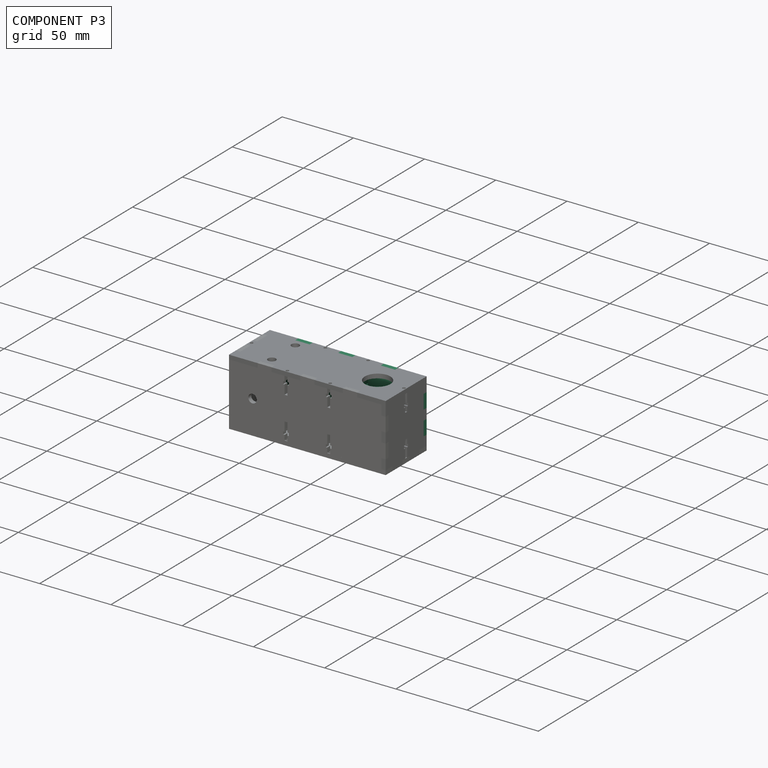
[diagram: component P3 — assembled]
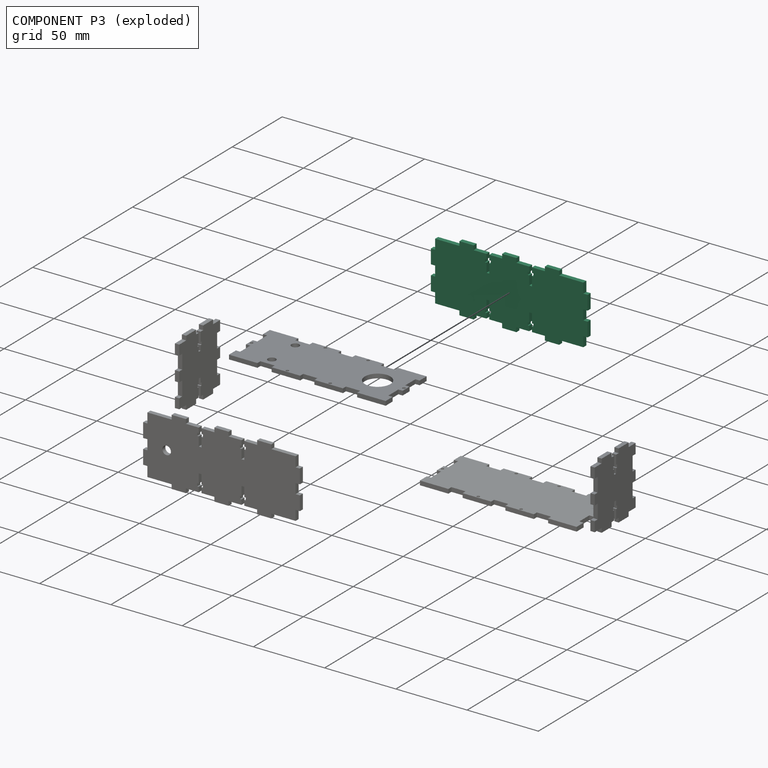
[diagram: component P3 — exploded]
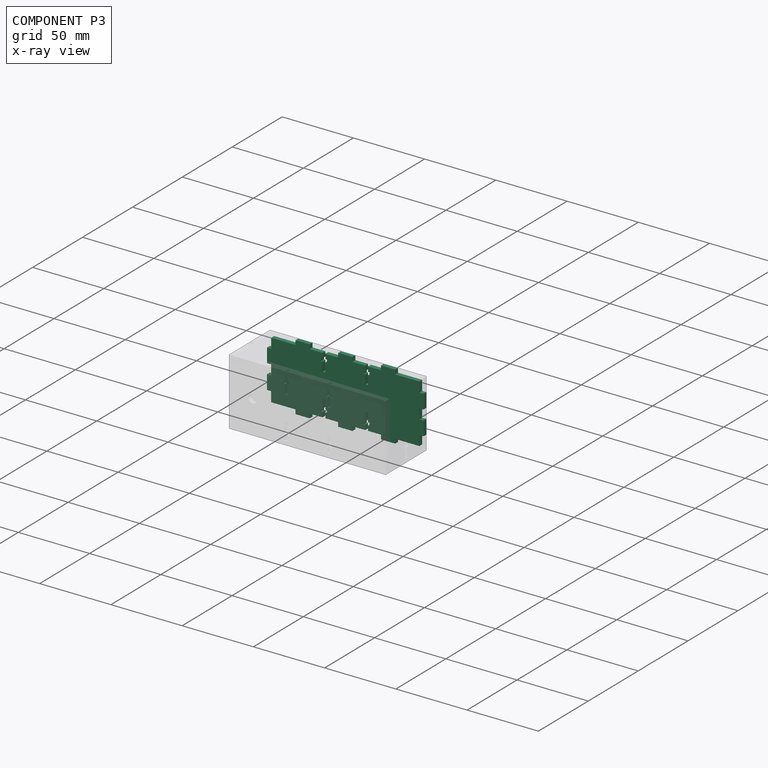
[diagram: component P3 — x-ray view]
COMPONENT P3 — recipe-attached (CADFS 00238671, mesh-verified: the recipe's output STEP matches this component's geometry to below the mesh-comparison resolution (tessellation chordal tolerance ~0.179 mm)).
Held by: FASTENED mate "Fastened 4" to P4.
Construction recipe (FeatureScript — the CAD program that rebuilds this solid; sketch coordinates are in the units given by the * unit suffixes, e.g. mm):

FeatureScript 1540;
import(path : "onshape/std/geometry.fs", version : "1540.0");
import(path : "onshape/std/common.fs", version : "1540.0");
const mm = millimeter;
const VERTEX = EntityType.VERTEX;
const EDGE = EntityType.EDGE;
const FACE = EntityType.FACE;
const BODY = EntityType.BODY;
function v(x, y){return vector(x, y);}
function OD(order){return orderDisambiguation(order);}
function OSD(set){return originalSetDisambiguation(set);}
function TD(topology){return topologyDisambiguation(topology);}
function TDD(query){return trueDependencyDisambiguation(query);}
function sQuery(a, b, c) {return sketchEntityQuery(a, b, c);}

annotation { "Feature Type Name" : "Feature", "Feature Type Description" : "" }
export const myFeature = defineFeature(function(context is Context, id is Id, definition is map)
    precondition{}
    {
        {
            var Q0;
            Q0=qCreatedBy(makeId("Right.planeOp"),FACE);
            var sketch = newSketch(context, id + "F0", { "sketchPlane" : qUnion([Q0])});
            skLineSegment(sketch, "E0", {"start": v(-52.38, -20.38) * mm, "end": v(-52.38, -13.38) * mm});
            skLineSegment(sketch, "E1", {"start": v(-52.38, -13.38) * mm, "end": v(-55.38, -13.38) * mm});
            skLineSegment(sketch, "E2", {"start": v(-55.38, -13.38) * mm, "end": v(-55.38, -3.38) * mm});
            skLineSegment(sketch, "E3", {"start": v(-55.38, -3.38) * mm, "end": v(-52.38, -3.38) * mm});
            skLineSegment(sketch, "E4", {"start": v(-52.38, -3.38) * mm, "end": v(-52.38, 0.12) * mm});
            skLineSegment(sketch, "E5", {"start": v(-52.38, -20.38) * mm, "end": v(-35.38, -20.38) * mm});
            skLineSegment(sketch, "E6", {"start": v(-35.38, -20.38) * mm, "end": v(-35.38, -23.38) * mm});
            skLineSegment(sketch, "E7", {"start": v(-35.38, -23.38) * mm, "end": v(-25.38, -23.38) * mm});
            skLineSegment(sketch, "E8", {"start": v(-25.38, -20.38) * mm, "end": v(-25.38, -23.38) * mm});
            skLineSegment(sketch, "E9", {"start": v(-25.38, -20.38) * mm, "end": v(-16.38, -20.38) * mm});
            skLineSegment(sketch, "E10", {"start": v(-16.38, -20.38) * mm, "end": v(-16.38, -16.88) * mm});
            skLineSegment(sketch, "E11", {"start": v(-16.38, -16.88) * mm, "end": v(-17.38, -16.88) * mm});
            skLineSegment(sketch, "E12", {"start": v(-17.38, -16.88) * mm, "end": v(-17.38, -14.88) * mm});
            skLineSegment(sketch, "E13", {"start": v(-17.38, -14.88) * mm, "end": v(-16.38, -14.88) * mm});
            skLineSegment(sketch, "E14", {"start": v(-16.38, -14.88) * mm, "end": v(-16.38, -8.38) * mm});
            skLineSegment(sketch, "E15", {"start": v(-16.38, -8.38) * mm, "end": v(-14.38, -8.38) * mm});
            skLineSegment(sketch, "E16", {"start": v(-14.38, -8.38) * mm, "end": v(-14.38, -14.88) * mm});
            skLineSegment(sketch, "E17", {"start": v(-14.38, -14.88) * mm, "end": v(-13.38, -14.88) * mm});
            skLineSegment(sketch, "E18", {"start": v(-14.38, -16.88) * mm, "end": v(-13.38, -16.88) * mm});
            skLineSegment(sketch, "E19", {"start": v(-14.38, -20.38) * mm, "end": v(-14.38, -16.88) * mm});
            skLineSegment(sketch, "E20", {"start": v(-14.38, -20.38) * mm, "end": v(-5.38, -20.38) * mm});
            skLineSegment(sketch, "E21", {"start": v(-13.38, -16.88) * mm, "end": v(-13.38, -14.88) * mm});
            skLineSegment(sketch, "E22", {"start": v(-5.38, -20.38) * mm, "end": v(-5.38, -23.38) * mm});
            skLineSegment(sketch, "E23", {"start": v(-5.38, -23.38) * mm, "end": v(-0.38, -23.38) * mm});
            skLineSegment(sketch, "E24", {"start": v(-52.38, 0.12) * mm, "end": v(-0.38, 0.12) * mm, "construction": true});
            skLineSegment(sketch, "E25", {"start": v(-0.38, 0.12) * mm, "end": v(-0.38, -23.38) * mm, "construction": true});
            skLineSegment(sketch, "E26.MirrorCS", {"start": v(-17.38, 15.12) * mm, "end": v(-16.38, 15.12) * mm});
            skLineSegment(sketch, "E27.MirrorCS", {"start": v(-13.38, 17.12) * mm, "end": v(-13.38, 15.12) * mm});
            skLineSegment(sketch, "E28.MirrorCS", {"start": v(-16.38, 17.12) * mm, "end": v(-17.38, 17.12) * mm});
            skLineSegment(sketch, "E29.MirrorCS", {"start": v(-17.38, 17.12) * mm, "end": v(-17.38, 15.12) * mm});
            skLineSegment(sketch, "E30.MirrorCS", {"start": v(-14.38, 15.12) * mm, "end": v(-13.38, 15.12) * mm});
            skLineSegment(sketch, "E31.MirrorCS", {"start": v(-14.38, 17.12) * mm, "end": v(-13.38, 17.12) * mm});
            skLineSegment(sketch, "E32.MirrorCS", {"start": v(-16.38, 8.62) * mm, "end": v(-14.38, 8.62) * mm});
            skLineSegment(sketch, "E33.MirrorCS", {"start": v(-16.38, 20.62) * mm, "end": v(-16.38, 17.12) * mm});
            skLineSegment(sketch, "E34.MirrorCS", {"start": v(-25.38, 20.62) * mm, "end": v(-25.38, 23.62) * mm});
            skLineSegment(sketch, "E35.MirrorCS", {"start": v(-52.38, 13.62) * mm, "end": v(-55.38, 13.62) * mm});
            skLineSegment(sketch, "E36.MirrorCS", {"start": v(-16.38, 15.12) * mm, "end": v(-16.38, 8.62) * mm});
            skLineSegment(sketch, "E37.MirrorCS", {"start": v(-14.38, 20.62) * mm, "end": v(-14.38, 17.12) * mm});
            skLineSegment(sketch, "E38.MirrorCS", {"start": v(-25.38, 20.62) * mm, "end": v(-16.38, 20.62) * mm});
            skLineSegment(sketch, "E39.MirrorCS", {"start": v(-14.38, 8.62) * mm, "end": v(-14.38, 15.12) * mm});
            skLineSegment(sketch, "E40.MirrorCS", {"start": v(-14.38, 20.62) * mm, "end": v(-5.38, 20.62) * mm});
            skLineSegment(sketch, "E41.MirrorCS", {"start": v(-52.38, 20.62) * mm, "end": v(-35.38, 20.62) * mm});
            skLineSegment(sketch, "E42.MirrorCS", {"start": v(-35.38, 20.62) * mm, "end": v(-35.38, 23.62) * mm});
            skLineSegment(sketch, "E43.MirrorCS", {"start": v(-55.38, 13.62) * mm, "end": v(-55.38, 3.62) * mm});
            skLineSegment(sketch, "E44.MirrorCS", {"start": v(-55.38, 3.62) * mm, "end": v(-52.38, 3.62) * mm});
            skLineSegment(sketch, "E45.MirrorCS", {"start": v(-52.38, 20.62) * mm, "end": v(-52.38, 13.62) * mm});
            skLineSegment(sketch, "E46.MirrorCS", {"start": v(-5.38, 20.62) * mm, "end": v(-5.38, 23.62) * mm});
            skLineSegment(sketch, "E47.MirrorCS", {"start": v(-35.38, 23.62) * mm, "end": v(-25.38, 23.62) * mm});
            skLineSegment(sketch, "E48.MirrorCS", {"start": v(-52.38, 3.62) * mm, "end": v(-52.38, 0.12) * mm});
            skLineSegment(sketch, "E49.MirrorCS", {"start": v(-5.38, 23.62) * mm, "end": v(-0.38, 23.62) * mm});
            skLineSegment(sketch, "E50.MirrorCS", {"start": v(-0.38, 0.12) * mm, "end": v(-0.38, 23.62) * mm, "construction": true});
            skLineSegment(sketch, "E51.MirrorCS", {"start": v(16.62, 17.12) * mm, "end": v(16.62, 15.12) * mm});
            skLineSegment(sketch, "E52.MirrorCS", {"start": v(16.62, 15.12) * mm, "end": v(15.62, 15.12) * mm});
            skLineSegment(sketch, "E53.MirrorCS", {"start": v(15.62, 8.62) * mm, "end": v(13.62, 8.62) * mm});
            skLineSegment(sketch, "E54.MirrorCS", {"start": v(13.62, 17.12) * mm, "end": v(12.62, 17.12) * mm});
            skLineSegment(sketch, "E55.MirrorCS", {"start": v(13.62, -16.88) * mm, "end": v(12.62, -16.88) * mm});
            skLineSegment(sketch, "E56.MirrorCS", {"start": v(15.62, -16.88) * mm, "end": v(16.62, -16.88) * mm});
            skLineSegment(sketch, "E57.MirrorCS", {"start": v(16.62, -16.88) * mm, "end": v(16.62, -14.88) * mm});
            skLineSegment(sketch, "E58.MirrorCS", {"start": v(13.62, -14.88) * mm, "end": v(12.62, -14.88) * mm});
            skLineSegment(sketch, "E59.MirrorCS", {"start": v(12.62, 17.12) * mm, "end": v(12.62, 15.12) * mm});
            skLineSegment(sketch, "E60.MirrorCS", {"start": v(13.62, 15.12) * mm, "end": v(12.62, 15.12) * mm});
            skLineSegment(sketch, "E61.MirrorCS", {"start": v(16.62, -14.88) * mm, "end": v(15.62, -14.88) * mm});
            skLineSegment(sketch, "E62.MirrorCS", {"start": v(12.62, -16.88) * mm, "end": v(12.62, -14.88) * mm});
            skLineSegment(sketch, "E63.MirrorCS", {"start": v(15.62, 17.12) * mm, "end": v(16.62, 17.12) * mm});
            skLineSegment(sketch, "E64.MirrorCS", {"start": v(15.62, -8.38) * mm, "end": v(13.62, -8.38) * mm});
            skLineSegment(sketch, "E65.MirrorCS", {"start": v(24.62, 20.62) * mm, "end": v(24.62, 23.62) * mm});
            skLineSegment(sketch, "E66.MirrorCS", {"start": v(13.62, -20.38) * mm, "end": v(4.62, -20.38) * mm});
            skLineSegment(sketch, "E67.MirrorCS", {"start": v(51.62, 20.62) * mm, "end": v(51.62, 13.62) * mm});
            skLineSegment(sketch, "E68.MirrorCS", {"start": v(34.62, 20.62) * mm, "end": v(34.62, 23.62) * mm});
            skLineSegment(sketch, "E69.MirrorCS", {"start": v(13.62, -20.38) * mm, "end": v(13.62, -16.88) * mm});
            skLineSegment(sketch, "E70.MirrorCS", {"start": v(13.62, -8.38) * mm, "end": v(13.62, -14.88) * mm});
            skLineSegment(sketch, "E71.MirrorCS", {"start": v(15.62, 15.12) * mm, "end": v(15.62, 8.62) * mm});
            skLineSegment(sketch, "E72.MirrorCS", {"start": v(51.62, 3.62) * mm, "end": v(51.62, 0.12) * mm});
            skLineSegment(sketch, "E73.MirrorCS", {"start": v(51.62, 13.62) * mm, "end": v(54.62, 13.62) * mm});
            skLineSegment(sketch, "E74.MirrorCS", {"start": v(34.62, 23.62) * mm, "end": v(24.62, 23.62) * mm});
            skLineSegment(sketch, "E75.MirrorCS", {"start": v(15.62, -20.38) * mm, "end": v(15.62, -16.88) * mm});
            skLineSegment(sketch, "E76.MirrorCS", {"start": v(15.62, 20.62) * mm, "end": v(15.62, 17.12) * mm});
            skLineSegment(sketch, "E77.MirrorCS", {"start": v(34.62, -20.38) * mm, "end": v(34.62, -23.38) * mm});
            skLineSegment(sketch, "E78.MirrorCS", {"start": v(51.62, -20.38) * mm, "end": v(51.62, -13.38) * mm});
            skLineSegment(sketch, "E79.MirrorCS", {"start": v(4.62, 23.62) * mm, "end": v(-0.38, 23.62) * mm});
            skLineSegment(sketch, "E80.MirrorCS", {"start": v(24.62, -20.38) * mm, "end": v(15.62, -20.38) * mm});
            skLineSegment(sketch, "E81.MirrorCS", {"start": v(4.62, -20.38) * mm, "end": v(4.62, -23.38) * mm});
            skLineSegment(sketch, "E82.MirrorCS", {"start": v(51.62, -13.38) * mm, "end": v(54.62, -13.38) * mm});
            skLineSegment(sketch, "E83.MirrorCS", {"start": v(24.62, 20.62) * mm, "end": v(15.62, 20.62) * mm});
            skLineSegment(sketch, "E84.MirrorCS", {"start": v(54.62, 13.62) * mm, "end": v(54.62, 3.62) * mm});
            skLineSegment(sketch, "E85.MirrorCS", {"start": v(54.62, -13.38) * mm, "end": v(54.62, -3.38) * mm});
            skLineSegment(sketch, "E86.MirrorCS", {"start": v(13.62, 8.62) * mm, "end": v(13.62, 15.12) * mm});
            skLineSegment(sketch, "E87.MirrorCS", {"start": v(4.62, -23.38) * mm, "end": v(-0.38, -23.38) * mm});
            skLineSegment(sketch, "E88.MirrorCS", {"start": v(13.62, 20.62) * mm, "end": v(13.62, 17.12) * mm});
            skLineSegment(sketch, "E89.MirrorCS", {"start": v(4.62, 20.62) * mm, "end": v(4.62, 23.62) * mm});
            skLineSegment(sketch, "E90.MirrorCS", {"start": v(13.62, 20.62) * mm, "end": v(4.62, 20.62) * mm});
            skLineSegment(sketch, "E91.MirrorCS", {"start": v(51.62, 0.12) * mm, "end": v(-0.38, 0.12) * mm, "construction": true});
            skLineSegment(sketch, "E92.MirrorCS", {"start": v(54.62, 3.62) * mm, "end": v(51.62, 3.62) * mm});
            skLineSegment(sketch, "E93.MirrorCS", {"start": v(51.62, -20.38) * mm, "end": v(34.62, -20.38) * mm});
            skLineSegment(sketch, "E94.MirrorCS", {"start": v(34.62, -23.38) * mm, "end": v(24.62, -23.38) * mm});
            skLineSegment(sketch, "E95.MirrorCS", {"start": v(15.62, -14.88) * mm, "end": v(15.62, -8.38) * mm});
            skLineSegment(sketch, "E96.MirrorCS", {"start": v(24.62, -20.38) * mm, "end": v(24.62, -23.38) * mm});
            skLineSegment(sketch, "E97.MirrorCS", {"start": v(51.62, 20.62) * mm, "end": v(34.62, 20.62) * mm});
            skLineSegment(sketch, "E98.MirrorCS", {"start": v(51.62, -3.38) * mm, "end": v(51.62, 0.12) * mm});
            skLineSegment(sketch, "E99.MirrorCS", {"start": v(54.62, -3.38) * mm, "end": v(51.62, -3.38) * mm});
            skSolve(sketch);
        }
        {
            var Q0;
            Q0=qSketchRegion(id+"F0",true);
            extrude(context, id + "F1", {"entities" : qUnion([Q0]), "depth" : 3 * mm});
        }
    });
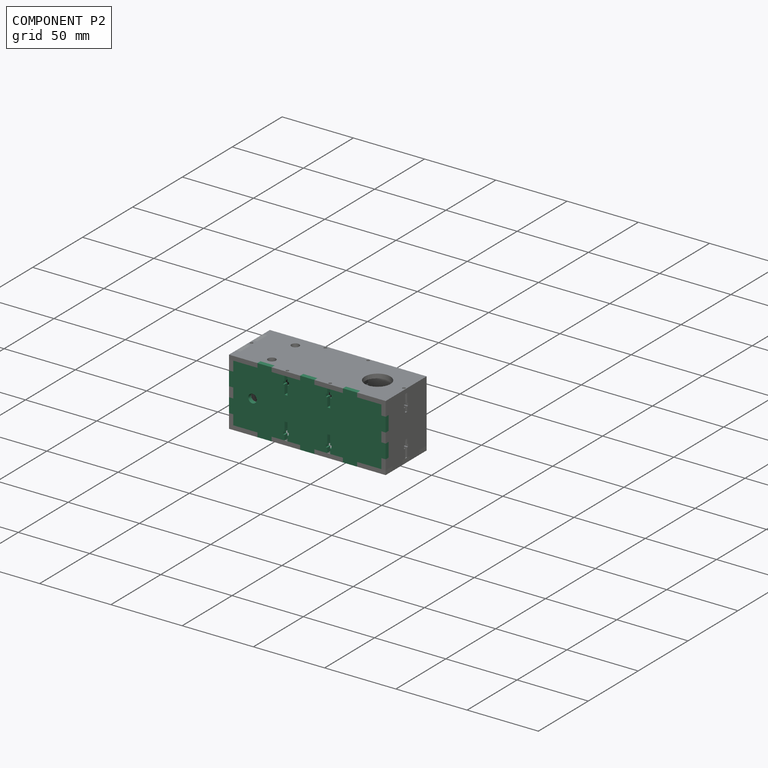
[diagram: component P2 — assembled]
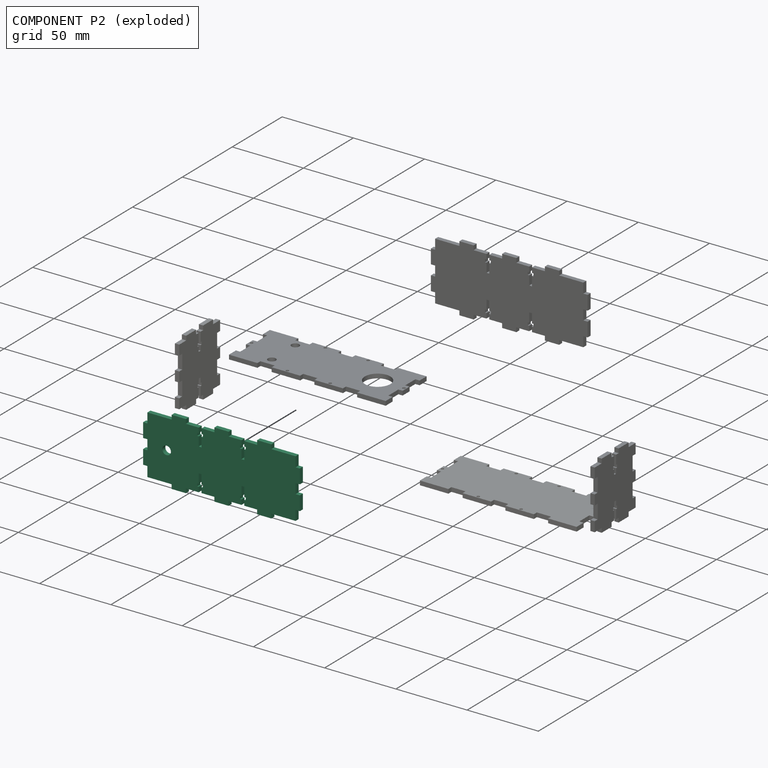
[diagram: component P2 — exploded]
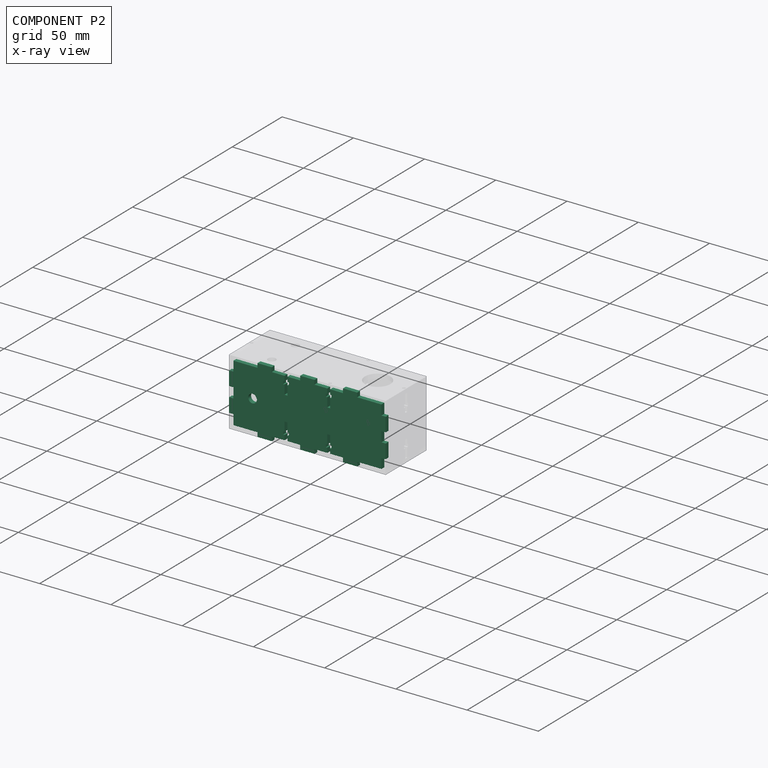
[diagram: component P2 — x-ray view]
COMPONENT P2 — recipe-attached (CADFS 00238670, mesh-verified: the recipe's output STEP matches this component's geometry to below the mesh-comparison resolution (tessellation chordal tolerance ~0.179 mm)).
Held by: FASTENED mate "Fastened 5" to P5.
Construction recipe (FeatureScript — the CAD program that rebuilds this solid; sketch coordinates are in the units given by the * unit suffixes, e.g. mm):

FeatureScript 1540;
import(path : "onshape/std/geometry.fs", version : "1540.0");
import(path : "onshape/std/common.fs", version : "1540.0");
const mm = millimeter;
const VERTEX = EntityType.VERTEX;
const EDGE = EntityType.EDGE;
const FACE = EntityType.FACE;
const BODY = EntityType.BODY;
function v(x, y){return vector(x, y);}
function OD(order){return orderDisambiguation(order);}
function OSD(set){return originalSetDisambiguation(set);}
function TD(topology){return topologyDisambiguation(topology);}
function TDD(query){return trueDependencyDisambiguation(query);}
function sQuery(a, b, c) {return sketchEntityQuery(a, b, c);}

annotation { "Feature Type Name" : "Feature", "Feature Type Description" : "" }
export const myFeature = defineFeature(function(context is Context, id is Id, definition is map)
    precondition{}
    {
        {
            var Q0;
            Q0=qCreatedBy(makeId("Right.planeOp"),FACE);
            var sketch = newSketch(context, id + "F0", { "sketchPlane" : qUnion([Q0])});
            skLineSegment(sketch, "E0", {"start": v(0, 0) * mm, "end": v(0, 7) * mm});
            skLineSegment(sketch, "E1", {"start": v(0, 7) * mm, "end": v(-3, 7) * mm});
            skLineSegment(sketch, "E2", {"start": v(-3, 7) * mm, "end": v(-3, 17) * mm});
            skLineSegment(sketch, "E3", {"start": v(-3, 17) * mm, "end": v(0, 17) * mm});
            skLineSegment(sketch, "E4", {"start": v(0, 17) * mm, "end": v(0, 20.5) * mm});
            skLineSegment(sketch, "E5", {"start": v(0, 0) * mm, "end": v(17, 0) * mm});
            skLineSegment(sketch, "E6", {"start": v(17, 0) * mm, "end": v(17, -3) * mm});
            skLineSegment(sketch, "E7", {"start": v(17, -3) * mm, "end": v(27, -3) * mm});
            skLineSegment(sketch, "E8", {"start": v(27, 0) * mm, "end": v(27, -3) * mm});
            skLineSegment(sketch, "E9", {"start": v(27, 0) * mm, "end": v(36, 0) * mm});
            skLineSegment(sketch, "E10", {"start": v(36, 0) * mm, "end": v(36, 3.5) * mm});
            skLineSegment(sketch, "E11", {"start": v(36, 3.5) * mm, "end": v(35, 3.5) * mm});
            skLineSegment(sketch, "E12", {"start": v(35, 3.5) * mm, "end": v(35, 5.5) * mm});
            skLineSegment(sketch, "E13", {"start": v(35, 5.5) * mm, "end": v(36, 5.5) * mm});
            skLineSegment(sketch, "E14", {"start": v(36, 5.5) * mm, "end": v(36, 12) * mm});
            skLineSegment(sketch, "E15", {"start": v(36, 12) * mm, "end": v(38, 12) * mm});
            skLineSegment(sketch, "E16", {"start": v(38, 12) * mm, "end": v(38, 5.5) * mm});
            skLineSegment(sketch, "E17", {"start": v(38, 5.5) * mm, "end": v(39, 5.5) * mm});
            skLineSegment(sketch, "E18", {"start": v(38, 3.5) * mm, "end": v(39, 3.5) * mm});
            skLineSegment(sketch, "E19", {"start": v(38, 0) * mm, "end": v(38, 3.5) * mm});
            skLineSegment(sketch, "E20", {"start": v(38, 0) * mm, "end": v(47, 0) * mm});
            skLineSegment(sketch, "E21", {"start": v(39, 3.5) * mm, "end": v(39, 5.5) * mm});
            skLineSegment(sketch, "E22", {"start": v(47, 0) * mm, "end": v(47, -3) * mm});
            skLineSegment(sketch, "E23", {"start": v(47, -3) * mm, "end": v(52, -3) * mm});
            skLineSegment(sketch, "E24", {"start": v(0, 20.5) * mm, "end": v(52, 20.5) * mm, "construction": true});
            skLineSegment(sketch, "E25", {"start": v(52, 20.5) * mm, "end": v(52, -3) * mm, "construction": true});
            skLineSegment(sketch, "E26.MirrorCS", {"start": v(35, 35.5) * mm, "end": v(36, 35.5) * mm});
            skLineSegment(sketch, "E27.MirrorCS", {"start": v(39, 37.5) * mm, "end": v(39, 35.5) * mm});
            skLineSegment(sketch, "E28.MirrorCS", {"start": v(36, 37.5) * mm, "end": v(35, 37.5) * mm});
            skLineSegment(sketch, "E29.MirrorCS", {"start": v(35, 37.5) * mm, "end": v(35, 35.5) * mm});
            skLineSegment(sketch, "E30.MirrorCS", {"start": v(38, 35.5) * mm, "end": v(39, 35.5) * mm});
            skLineSegment(sketch, "E31.MirrorCS", {"start": v(38, 37.5) * mm, "end": v(39, 37.5) * mm});
            skLineSegment(sketch, "E32.MirrorCS", {"start": v(36, 29) * mm, "end": v(38, 29) * mm});
            skLineSegment(sketch, "E33.MirrorCS", {"start": v(36, 41) * mm, "end": v(36, 37.5) * mm});
            skLineSegment(sketch, "E34.MirrorCS", {"start": v(27, 41) * mm, "end": v(27, 44) * mm});
            skLineSegment(sketch, "E35.MirrorCS", {"start": v(0, 34) * mm, "end": v(-3, 34) * mm});
            skLineSegment(sketch, "E36.MirrorCS", {"start": v(36, 35.5) * mm, "end": v(36, 29) * mm});
            skLineSegment(sketch, "E37.MirrorCS", {"start": v(38, 41) * mm, "end": v(38, 37.5) * mm});
            skLineSegment(sketch, "E38.MirrorCS", {"start": v(27, 41) * mm, "end": v(36, 41) * mm});
            skLineSegment(sketch, "E39.MirrorCS", {"start": v(38, 29) * mm, "end": v(38, 35.5) * mm});
            skLineSegment(sketch, "E40.MirrorCS", {"start": v(38, 41) * mm, "end": v(47, 41) * mm});
            skLineSegment(sketch, "E41.MirrorCS", {"start": v(0, 41) * mm, "end": v(17, 41) * mm});
            skLineSegment(sketch, "E42.MirrorCS", {"start": v(17, 41) * mm, "end": v(17, 44) * mm});
            skLineSegment(sketch, "E43.MirrorCS", {"start": v(-3, 34) * mm, "end": v(-3, 24) * mm});
            skLineSegment(sketch, "E44.MirrorCS", {"start": v(-3, 24) * mm, "end": v(0, 24) * mm});
            skLineSegment(sketch, "E45.MirrorCS", {"start": v(0, 41) * mm, "end": v(0, 34) * mm});
            skLineSegment(sketch, "E46.MirrorCS", {"start": v(47, 41) * mm, "end": v(47, 44) * mm});
            skLineSegment(sketch, "E47.MirrorCS", {"start": v(17, 44) * mm, "end": v(27, 44) * mm});
            skLineSegment(sketch, "E48.MirrorCS", {"start": v(0, 24) * mm, "end": v(0, 20.5) * mm});
            skLineSegment(sketch, "E49.MirrorCS", {"start": v(47, 44) * mm, "end": v(52, 44) * mm});
            skLineSegment(sketch, "E50.MirrorCS", {"start": v(52, 20.5) * mm, "end": v(52, 44) * mm, "construction": true});
            skLineSegment(sketch, "E51.MirrorCS", {"start": v(69, 37.5) * mm, "end": v(69, 35.5) * mm});
            skLineSegment(sketch, "E52.MirrorCS", {"start": v(69, 35.5) * mm, "end": v(68, 35.5) * mm});
            skLineSegment(sketch, "E53.MirrorCS", {"start": v(68, 29) * mm, "end": v(66, 29) * mm});
            skLineSegment(sketch, "E54.MirrorCS", {"start": v(66, 37.5) * mm, "end": v(65, 37.5) * mm});
            skLineSegment(sketch, "E55.MirrorCS", {"start": v(66, 3.5) * mm, "end": v(65, 3.5) * mm});
            skLineSegment(sketch, "E56.MirrorCS", {"start": v(68, 3.5) * mm, "end": v(69, 3.5) * mm});
            skLineSegment(sketch, "E57.MirrorCS", {"start": v(69, 3.5) * mm, "end": v(69, 5.5) * mm});
            skLineSegment(sketch, "E58.MirrorCS", {"start": v(66, 5.5) * mm, "end": v(65, 5.5) * mm});
            skLineSegment(sketch, "E59.MirrorCS", {"start": v(65, 37.5) * mm, "end": v(65, 35.5) * mm});
            skLineSegment(sketch, "E60.MirrorCS", {"start": v(66, 35.5) * mm, "end": v(65, 35.5) * mm});
            skLineSegment(sketch, "E61.MirrorCS", {"start": v(69, 5.5) * mm, "end": v(68, 5.5) * mm});
            skLineSegment(sketch, "E62.MirrorCS", {"start": v(65, 3.5) * mm, "end": v(65, 5.5) * mm});
            skLineSegment(sketch, "E63.MirrorCS", {"start": v(68, 37.5) * mm, "end": v(69, 37.5) * mm});
            skLineSegment(sketch, "E64.MirrorCS", {"start": v(68, 12) * mm, "end": v(66, 12) * mm});
            skLineSegment(sketch, "E65.MirrorCS", {"start": v(77, 41) * mm, "end": v(77, 44) * mm});
            skLineSegment(sketch, "E66.MirrorCS", {"start": v(66, 0) * mm, "end": v(57, 0) * mm});
            skLineSegment(sketch, "E67.MirrorCS", {"start": v(104, 41) * mm, "end": v(104, 34) * mm});
            skLineSegment(sketch, "E68.MirrorCS", {"start": v(87, 41) * mm, "end": v(87, 44) * mm});
            skLineSegment(sketch, "E69.MirrorCS", {"start": v(66, 0) * mm, "end": v(66, 3.5) * mm});
            skLineSegment(sketch, "E70.MirrorCS", {"start": v(66, 12) * mm, "end": v(66, 5.5) * mm});
            skLineSegment(sketch, "E71.MirrorCS", {"start": v(68, 35.5) * mm, "end": v(68, 29) * mm});
            skLineSegment(sketch, "E72.MirrorCS", {"start": v(104, 24) * mm, "end": v(104, 20.5) * mm});
            skLineSegment(sketch, "E73.MirrorCS", {"start": v(104, 34) * mm, "end": v(107, 34) * mm});
            skLineSegment(sketch, "E74.MirrorCS", {"start": v(87, 44) * mm, "end": v(77, 44) * mm});
            skLineSegment(sketch, "E75.MirrorCS", {"start": v(68, 0) * mm, "end": v(68, 3.5) * mm});
            skLineSegment(sketch, "E76.MirrorCS", {"start": v(68, 41) * mm, "end": v(68, 37.5) * mm});
            skLineSegment(sketch, "E77.MirrorCS", {"start": v(87, 0) * mm, "end": v(87, -3) * mm});
            skLineSegment(sketch, "E78.MirrorCS", {"start": v(104, 0) * mm, "end": v(104, 7) * mm});
            skLineSegment(sketch, "E79.MirrorCS", {"start": v(57, 44) * mm, "end": v(52, 44) * mm});
            skLineSegment(sketch, "E80.MirrorCS", {"start": v(77, 0) * mm, "end": v(68, 0) * mm});
            skLineSegment(sketch, "E81.MirrorCS", {"start": v(57, 0) * mm, "end": v(57, -3) * mm});
            skLineSegment(sketch, "E82.MirrorCS", {"start": v(104, 7) * mm, "end": v(107, 7) * mm});
            skLineSegment(sketch, "E83.MirrorCS", {"start": v(77, 41) * mm, "end": v(68, 41) * mm});
            skLineSegment(sketch, "E84.MirrorCS", {"start": v(107, 34) * mm, "end": v(107, 24) * mm});
            skLineSegment(sketch, "E85.MirrorCS", {"start": v(107, 7) * mm, "end": v(107, 17) * mm});
            skLineSegment(sketch, "E86.MirrorCS", {"start": v(66, 29) * mm, "end": v(66, 35.5) * mm});
            skLineSegment(sketch, "E87.MirrorCS", {"start": v(57, -3) * mm, "end": v(52, -3) * mm});
            skLineSegment(sketch, "E88.MirrorCS", {"start": v(66, 41) * mm, "end": v(66, 37.5) * mm});
            skLineSegment(sketch, "E89.MirrorCS", {"start": v(57, 41) * mm, "end": v(57, 44) * mm});
            skLineSegment(sketch, "E90.MirrorCS", {"start": v(66, 41) * mm, "end": v(57, 41) * mm});
            skLineSegment(sketch, "E91.MirrorCS", {"start": v(104, 20.5) * mm, "end": v(52, 20.5) * mm, "construction": true});
            skLineSegment(sketch, "E92.MirrorCS", {"start": v(107, 24) * mm, "end": v(104, 24) * mm});
            skLineSegment(sketch, "E93.MirrorCS", {"start": v(104, 0) * mm, "end": v(87, 0) * mm});
            skLineSegment(sketch, "E94.MirrorCS", {"start": v(87, -3) * mm, "end": v(77, -3) * mm});
            skLineSegment(sketch, "E95.MirrorCS", {"start": v(68, 5.5) * mm, "end": v(68, 12) * mm});
            skLineSegment(sketch, "E96.MirrorCS", {"start": v(77, 0) * mm, "end": v(77, -3) * mm});
            skLineSegment(sketch, "E97.MirrorCS", {"start": v(104, 41) * mm, "end": v(87, 41) * mm});
            skLineSegment(sketch, "E98.MirrorCS", {"start": v(104, 17) * mm, "end": v(104, 20.5) * mm});
            skLineSegment(sketch, "E99.MirrorCS", {"start": v(107, 17) * mm, "end": v(104, 17) * mm});
            skCircle(sketch, "E100", {"center": v(90.5, 20.5) * mm, "radius": 3 * mm});
            skSolve(sketch);
        }
        {
            var Q0;
            Q0=qSketchRegion(id+"F0",true);
            extrude(context, id + "F1", {"entities" : qUnion([Q0]), "depth" : 3 * mm});
        }
    });
PROVENANCE & LICENSES
Assembly (occurrences, transforms, mates, per-part STEP geometry): AutoMate dataset, Zenodo record 7776208, CC0.
Construction recipes: CADFS (HuggingFace VladPyatov/CADFS, CC-BY-4.0, layered over the ABC dataset), FeatureScript reconstruction programs keyed by ABC model id.
Join: ABC meta listings map ABC model id -> Onshape documentId; within a shared document, parts are matched by geometric signature (bounding-box dims + volume at 0.1% relative tolerance, exact B-rep face/solid counts).
Verification: 6 of this assembly's 6 components carry a recipe attachment, and every attachment is mesh-verified: the CADFS STEP and the AutoMate member STEP were compared as meshes in their shared local frame (symmetric sampled-point-to-mesh distance); worst across the 6 attachments: below the mesh-comparison resolution (tessellation chordal tolerance ~0.179 mm) on a 120 mm part.
Renders: orthographic iso camera (az 35 / el 25); the floor grid conveys scale (grid pitch printed in each image; no ruler). In the exploded view each component is displaced by its stored offset vector: the offsets alone carry the explosion direction (mate normal/axis signs are not orientation cues and do not encode it), and separation distances are assigned per mate-chain, not proportionally to assembly-order depth.
